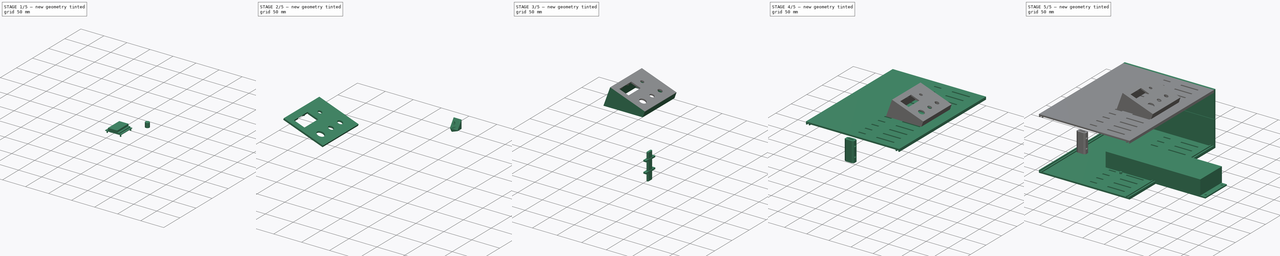
[diagram: build sequence overview — one tinted view per stage of 5, left to right]
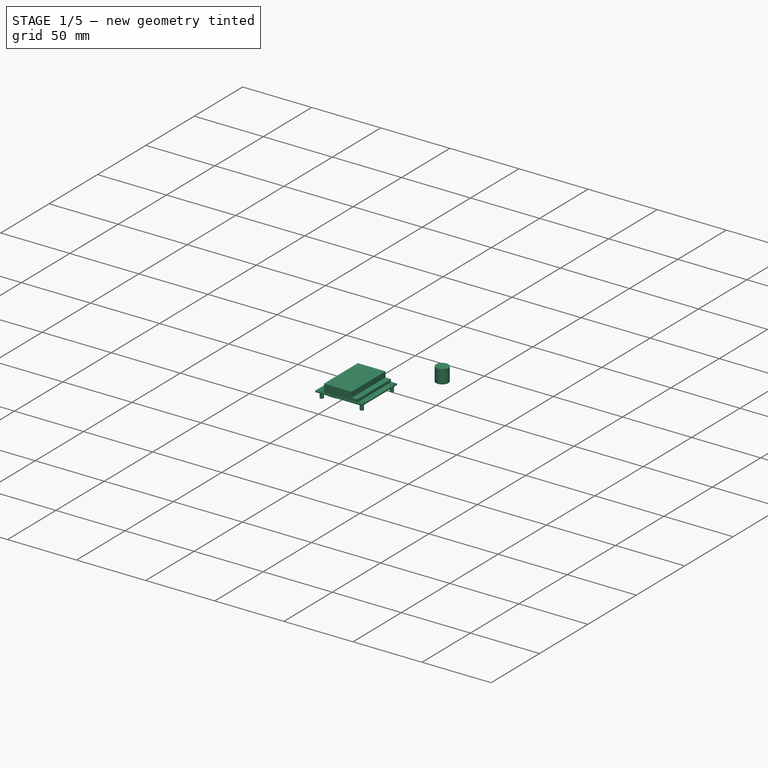
[diagram: stage 1 of 5 — iso view after this stage's code; geometry added in this stage tinted green]
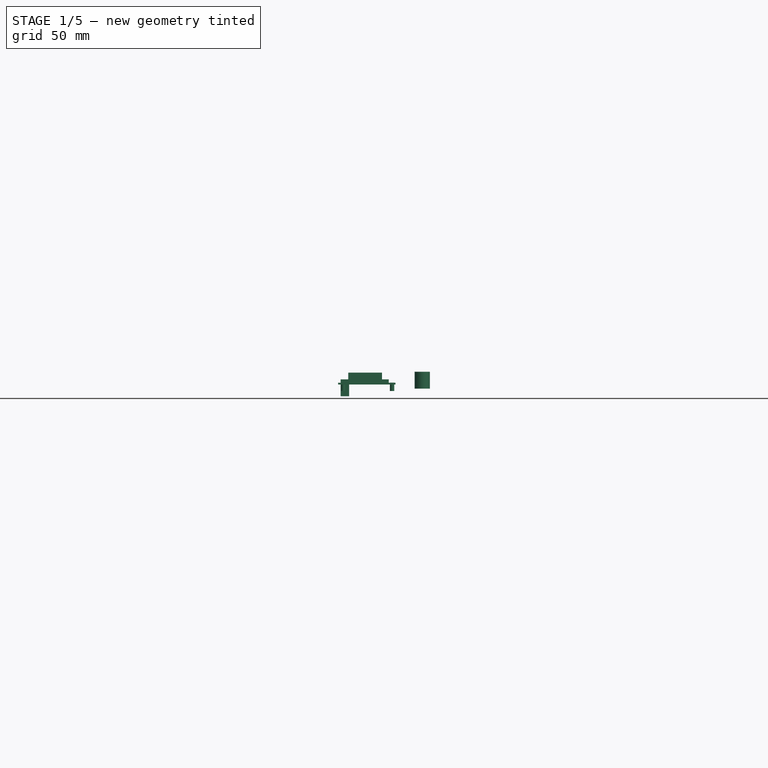
[diagram: stage 1 of 5 — front view after this stage's code; geometry added in this stage tinted green]
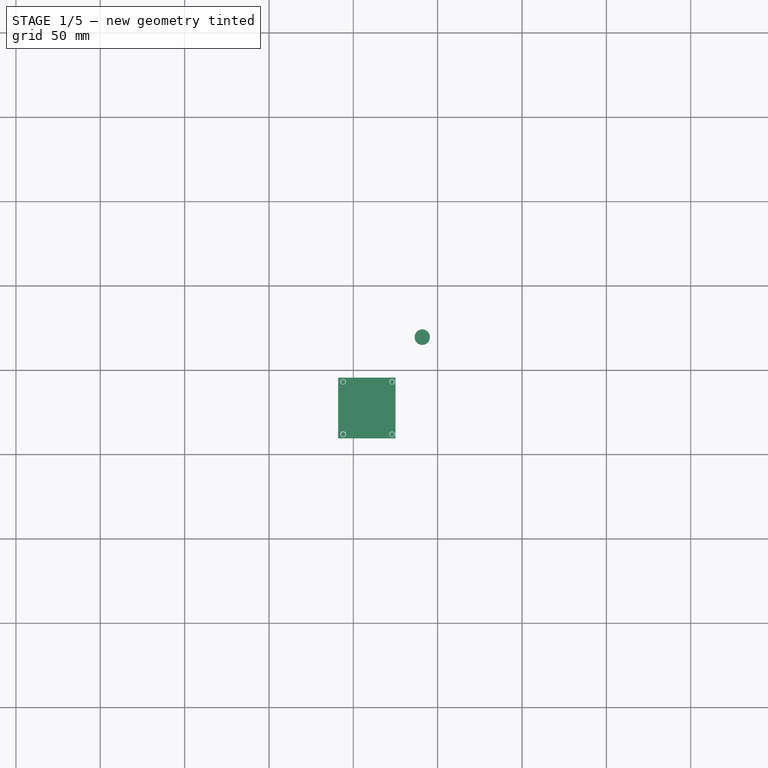
[diagram: stage 1 of 5 — top view after this stage's code; geometry added in this stage tinted green]
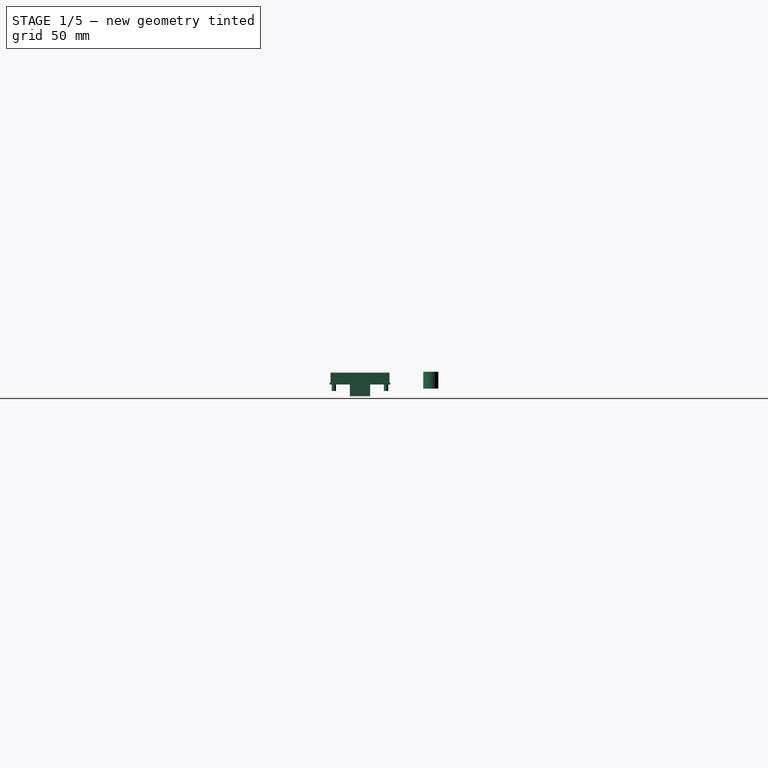
[diagram: stage 1 of 5 — right view after this stage's code; geometry added in this stage tinted green]
FCSTD DOCUMENT  (FreeCAD 0.21R33668 +26 (Git))
Label: HlavniModul
License: All rights reserved
LicenseURL: https://en.wikipedia.org/wiki/All_rights_reserved
objects: Part::Feature×48, App::Part×48, Part::Box×30, Part::MultiFuse×18, Part::Cylinder×17, Part::Cut×7, Part::Chamfer×6, Sketcher::SketchObject×4, Part::Extrusion×4, App::LinkGroup×1, Image::ImagePlane×1, Part::Wedge×1, Part::Mirroring×1, Part::Fillet×1
note: 137 computed .brp shape members not serialized (recipe doc carries the construction recipe); baked Part::Feature solids carry a one-line shape summary decoded from their .brp

FEATURE [Part::Cylinder] Cylinder042  label="screw"
  Angle = 360
  AttacherType = Attacher::AttachEngine3D
  FirstAngle = 0
  Height = 5
  Placement = pos=(-27,312,25.0938) rot=(1,0,0;3.14159rad)
  Radius = 1.3
  SecondAngle = 0
FEATURE [Part::Cylinder] Cylinder076
  Angle = 360
  AttacherType = Attacher::AttachEngine3D
  FirstAngle = 0
  Height = 10
  Placement = pos=(-9.11733,369.5,21.5179) rot=(0,0,1;0rad)
  Radius = 4.5
  SecondAngle = 0
FEATURE [Part::Box] Box004  label="Cube004"
  AttacherType = Attacher::AttachEngine3D
  Height = 4
  Length = 35
  Placement = pos=(0.5,8,3) rot=(0,0,1;0rad)
  Width = 20
FEATURE [Part::Box] Box005  label="Cube005"
  AttacherType = Attacher::AttachEngine3D
  Height = 1
  Length = 36
  Width = 34
FEATURE [Part::Box] Box006  label="Cube006"
  AttacherType = Attacher::AttachEngine3D
  Height = 10
  Length = 12
  Placement = pos=(12,27.5,-7) rot=(0,0,1;0rad)
  Width = 5
FEATURE [Part::Box] Box007  label="Cube007"
  AttacherType = Attacher::AttachEngine3D
  Height = 2
  Length = 35
  Placement = pos=(0.5,4,1) rot=(0,0,1;0rad)
  Width = 24
FEATURE [Part::Cylinder] Cylinder004
  Angle = 360
  AttacherType = Attacher::AttachEngine3D
  FirstAngle = 0
  Height = 10
  Placement = pos=(33.5,2,0) rot=(0,0,1;0rad)
  Radius = 1.6
  SecondAngle = 0
FEATURE [Part::Cylinder] Cylinder005
  Angle = 360
  AttacherType = Attacher::AttachEngine3D
  FirstAngle = 0
  Height = 10
  Placement = pos=(33.5,31,0) rot=(0,0,1;0rad)
  Radius = 1.6
  SecondAngle = 0
FEATURE [Part::Cylinder] Cylinder077
  Angle = 360
  AttacherType = Attacher::AttachEngine3D
  FirstAngle = 0
  Height = 10
  Placement = pos=(2.5,2,0) rot=(0,0,1;0rad)
  Radius = 1.6
  SecondAngle = 0
FEATURE [Part::Cylinder] Cylinder078
  Angle = 360
  AttacherType = Attacher::AttachEngine3D
  FirstAngle = 0
  Height = 10
  Placement = pos=(2.5,31,0) rot=(0,0,1;0rad)
  Radius = 1.6
  SecondAngle = 0
FEATURE [Part::MultiFuse] Fusion003
  Shapes = -> [Box006,Box005,Box007,Box004]
FEATURE [Part::MultiFuse] Fusion004
  Shapes = -> [Cylinder005,Cylinder078,Cylinder077,Cylinder004]
FEATURE [Part::Cut] Cut048  label="oled"
  Base = -> Fusion003
  Placement = pos=(-25,309.5,24) rot=(0,0,1;1.5708rad)
  Tool = -> Fusion004
FEATURE [Part::Cylinder] Cylinder080  label="screw004"
  Angle = 360
  AttacherType = Attacher::AttachEngine3D
  FirstAngle = 0
  Height = 5
  Placement = pos=(-56,312,25.0938) rot=(1,0,0;3.14159rad)
  Radius = 1.3
  SecondAngle = 0
FEATURE [Part::Cylinder] Cylinder081  label="screw005"
  Angle = 360
  AttacherType = Attacher::AttachEngine3D
  FirstAngle = 0
  Height = 5
  Placement = pos=(-27,343,25.0938) rot=(1,0,0;3.14159rad)
  Radius = 1.3
  SecondAngle = 0
FEATURE [Part::Cylinder] Cylinder082  label="screw006"
  Angle = 360
  AttacherType = Attacher::AttachEngine3D
  FirstAngle = 0
  Height = 5
  Placement = pos=(-56,343,25.0938) rot=(1,0,0;3.14159rad)
  Radius = 1.3
  SecondAngle = 0
FEATURE [Part::MultiFuse] Fusion072
  Shapes = -> [Cylinder081,Cylinder082,Cylinder080,Cylinder042]
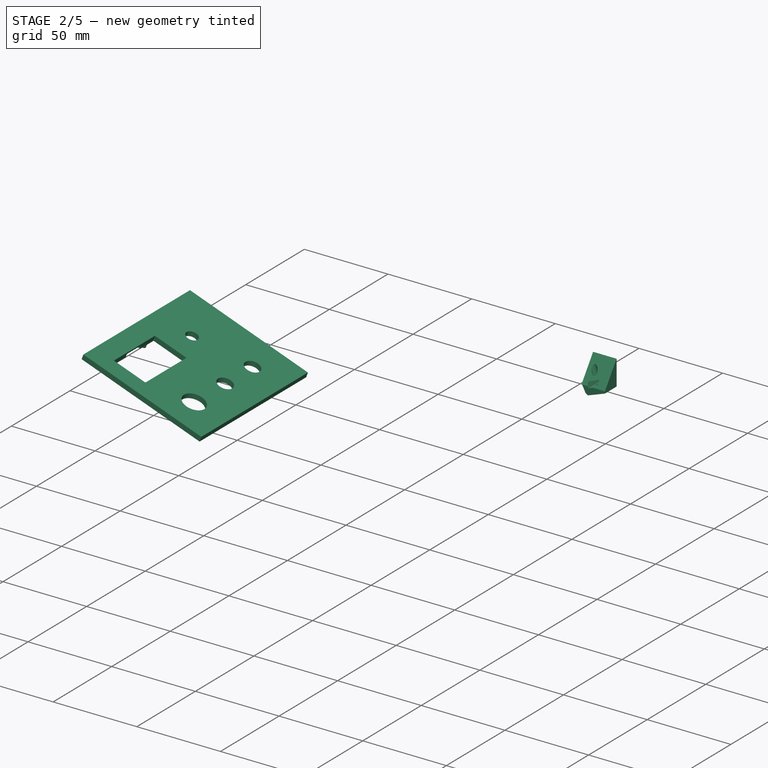
[diagram: stage 2 of 5 — iso view after this stage's code; geometry added in this stage tinted green]
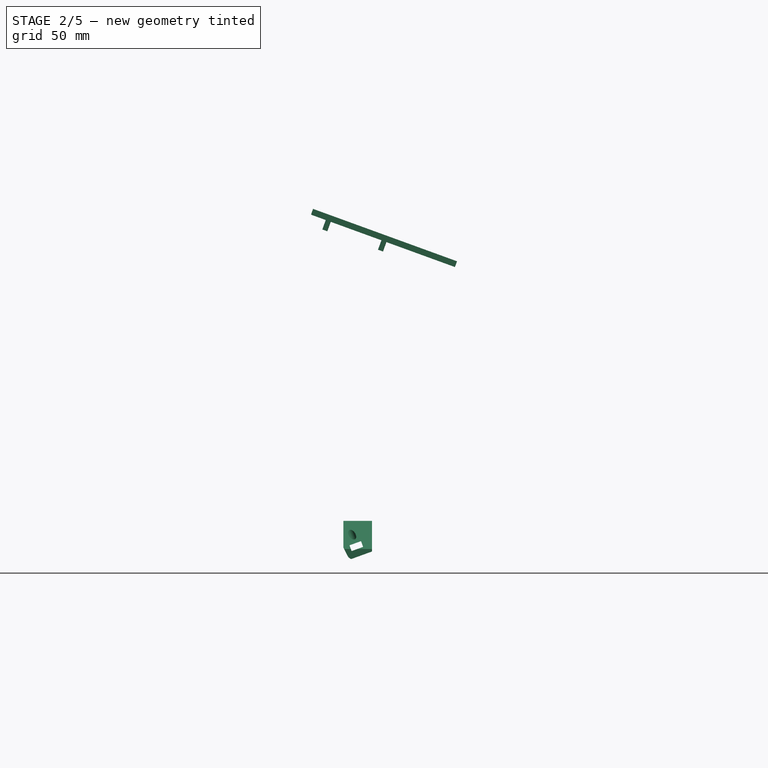
[diagram: stage 2 of 5 — front view after this stage's code; geometry added in this stage tinted green]
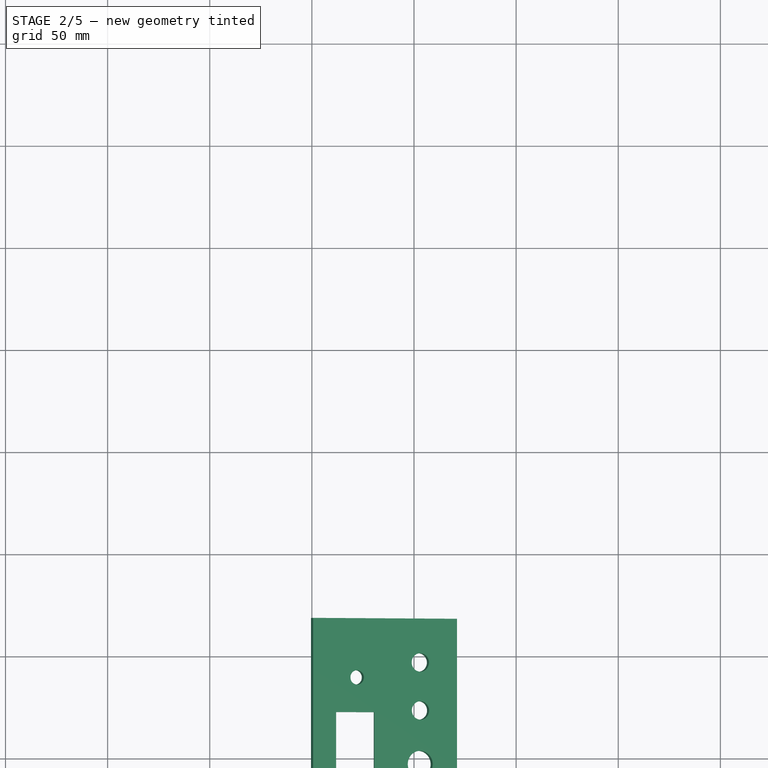
[diagram: stage 2 of 5 — top view after this stage's code; geometry added in this stage tinted green]
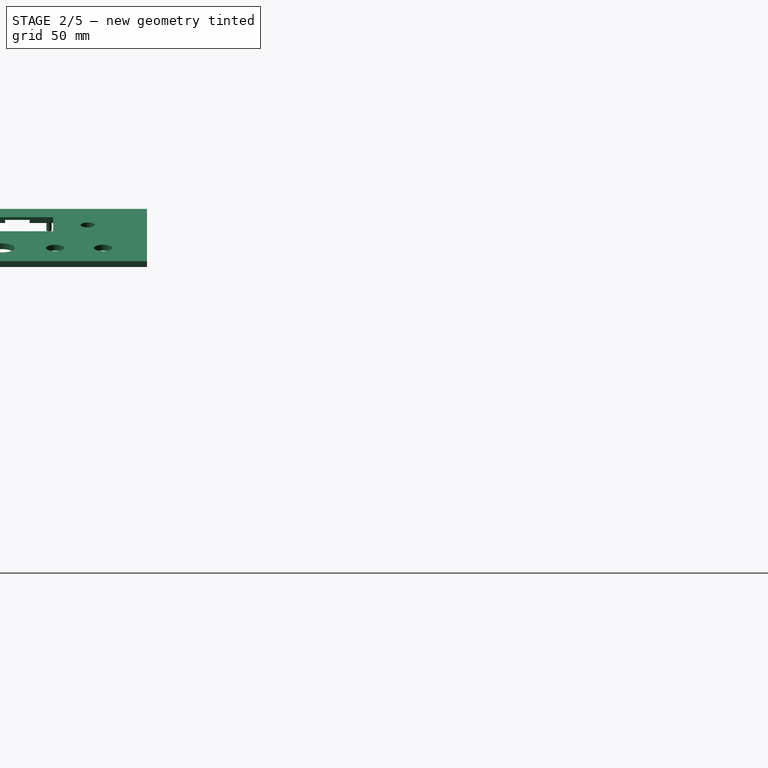
[diagram: stage 2 of 5 — right view after this stage's code; geometry added in this stage tinted green]
FEATURE [Sketcher::SketchObject] Sketch004
  FullyConstrained = false
  Placement = pos=(0,0,0) rot=(1,0,0;1.5708rad)
  sketch-geometry (4):
    g0: LineSegment StartX=68.9118 StartY=6.26702 StartZ=0 EndX=54.9118 EndY=6.26702 EndZ=0
    g1: LineSegment StartX=54.9118 StartY=6.26702 StartZ=0 EndX=54.9118 EndY=-13.8286 EndZ=0
    g2: LineSegment StartX=54.9118 StartY=-13.8286 StartZ=0 EndX=68.9118 EndY=-8.73298 EndZ=0
    g3: LineSegment StartX=68.9118 StartY=-8.73298 StartZ=0 EndX=68.9118 EndY=6.26702 EndZ=0
  constraints (10):
    c: Coincident(g0,g1)
    c: Coincident(g1,g2)
    c: Coincident(g2,g3)
    c: Coincident(g3,g0)
    c: Horizontal(g0)
    c: Vertical(g1)
    c: Vertical(g3)
    c: Angle(g3,g2) = 1.91986
    c: Distance(g0) = 14
    c: Distance(g3) = 15
FEATURE [Part::Extrusion] Extrude004
  Base = -> Sketch004
  Dir = (0,-1,-3e-16)
  DirMode = 2
  FaceMakerClass = Part::FaceMakerBullseye
  LengthFwd = 10
  LengthRev = 0
  Solid = true
  Symmetric = false
FEATURE [Part::Cylinder] Cylinder072
  Angle = 360
  AttacherType = Attacher::AttachEngine3D
  FirstAngle = 0
  Height = 30
  Placement = pos=(61,-4.5,-16.5) rot=(0,0,1;0rad)
  Radius = 1.7
  SecondAngle = 0
FEATURE [Part::Box] Box139  label="Cube139"
  AttacherType = Attacher::AttachEngine3D
  Height = 3
  Length = 6
  Placement = pos=(58,-19,-8.5) rot=(0,0,1;0rad)
  Width = 31
FEATURE [Part::Wedge] Wedge006
  AttacherType = Attacher::AttachEngine3D
  Placement = pos=(54.5,-11,4.5) rot=(-1,0,0;1.5708rad)
  X2max = 15
  X2min = 0
  Xmax = 15
  Xmin = 0
  Ymax = 12
  Ymin = -2
  Z2max = 1
  Z2min = 1
  Zmax = 11
  Zmin = 1
FEATURE [Part::MultiFuse] Fusion070
  Placement = pos=(1.53737,-0.5,-20.3763) rot=(0,-1,0;0.349066rad)
  Shapes = -> [Box139,Cylinder072]
FEATURE [Part::Cut] Cut045
  Base = -> Extrude004
  Tool = -> Wedge006
FEATURE [Part::Cut] Cut046
  Base = -> Cut045
  Tool = -> Fusion070
FEATURE [Part::Chamfer] Chamfer049
  Base = -> Cut046
  Edges = 1 edges r=4: [Edge12]
  Placement = pos=(-89.5,389,7.5) rot=(0,0,1;0rad)
FEATURE [Part::Chamfer] Chamfer050
  Base = -> Chamfer049
  Edges = 1 edges r=3: [Edge13]
FEATURE [Part::Box] Box141  label="Cube141"
  AttacherType = Attacher::AttachEngine3D
  Height = 75
  Length = 3
  Placement = pos=(10,300,25) rot=(0,1,0;4.71239rad)
  Width = 91
FEATURE [Part::Cylinder] Cylinder073
  Angle = 360
  AttacherType = Attacher::AttachEngine3D
  FirstAngle = 0
  Height = 10
  Placement = pos=(-42.0264,362,21.8762) rot=(0,0,1;0rad)
  Radius = 3.5
  SecondAngle = 0
FEATURE [Part::Cylinder] Cylinder074
  Angle = 360
  AttacherType = Attacher::AttachEngine3D
  FirstAngle = 0
  Height = 10
  Placement = pos=(-9.03186,346,21.8314) rot=(0,0,1;0rad)
  Radius = 4.5
  SecondAngle = 0
FEATURE [Part::Cylinder] Cylinder075
  Angle = 360
  AttacherType = Attacher::AttachEngine3D
  FirstAngle = 0
  Height = 10
  Placement = pos=(-9.15798,319.7,20.9397) rot=(0,0,1;0rad)
  Radius = 6.5
  SecondAngle = 0
FEATURE [Part::MultiFuse] Fusion071
  Shapes = -> [Cylinder075,Cylinder076,Cylinder074,Cylinder073]
FEATURE [Part::Cut] Cut047
  Base = -> Box141
  Tool = -> Fusion071
FEATURE [Part::Cut] Cut049
  Base = -> Cut047
  Tool = -> Cut048
FEATURE [Part::MultiFuse] Fusion075
  Placement = pos=(2.08668,-325,117.957) rot=(0,1,0;0.349066rad)
  Shapes = -> [Cut049,Fusion072]
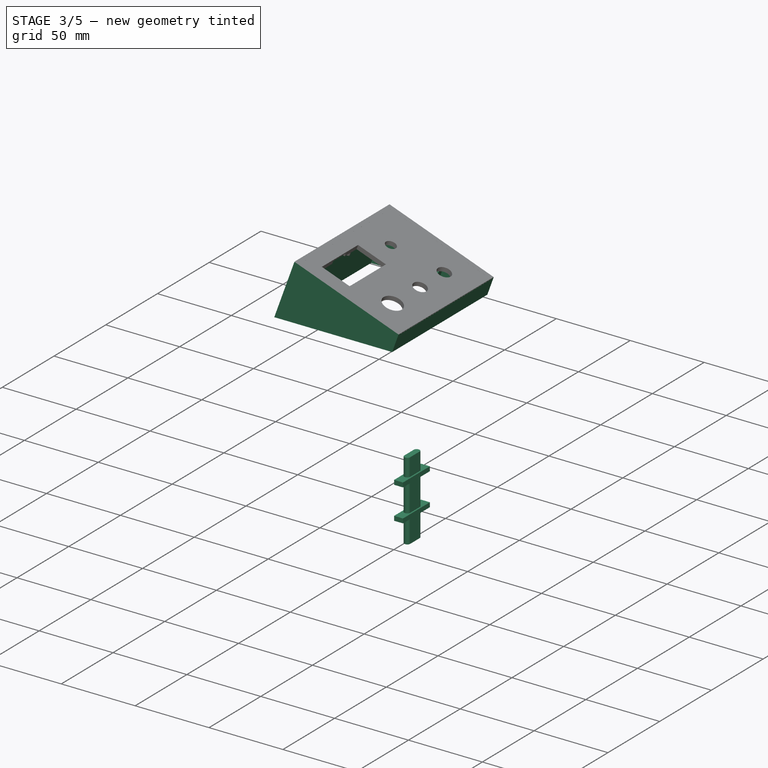
[diagram: stage 3 of 5 — iso view after this stage's code; geometry added in this stage tinted green]
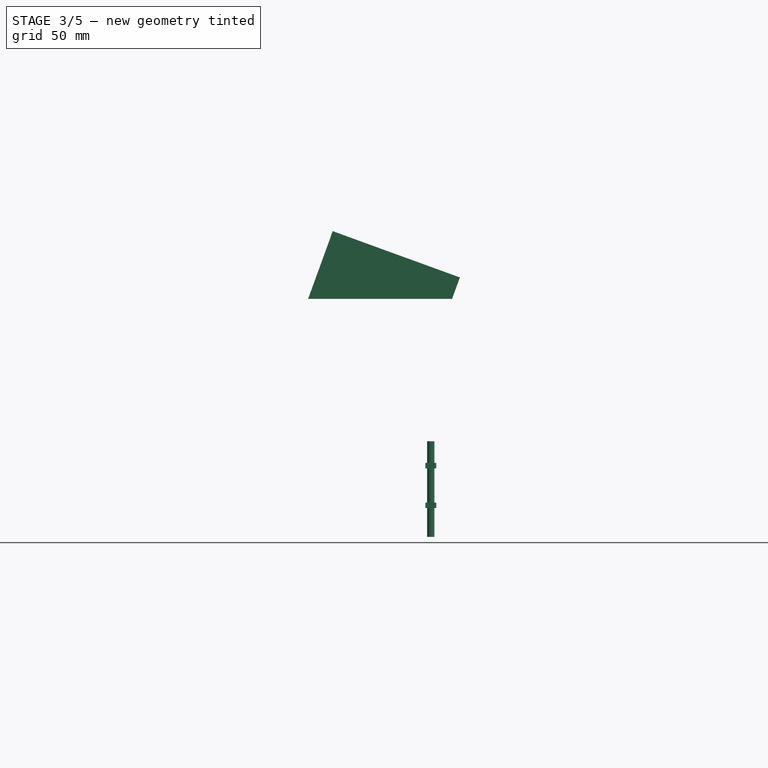
[diagram: stage 3 of 5 — front view after this stage's code; geometry added in this stage tinted green]
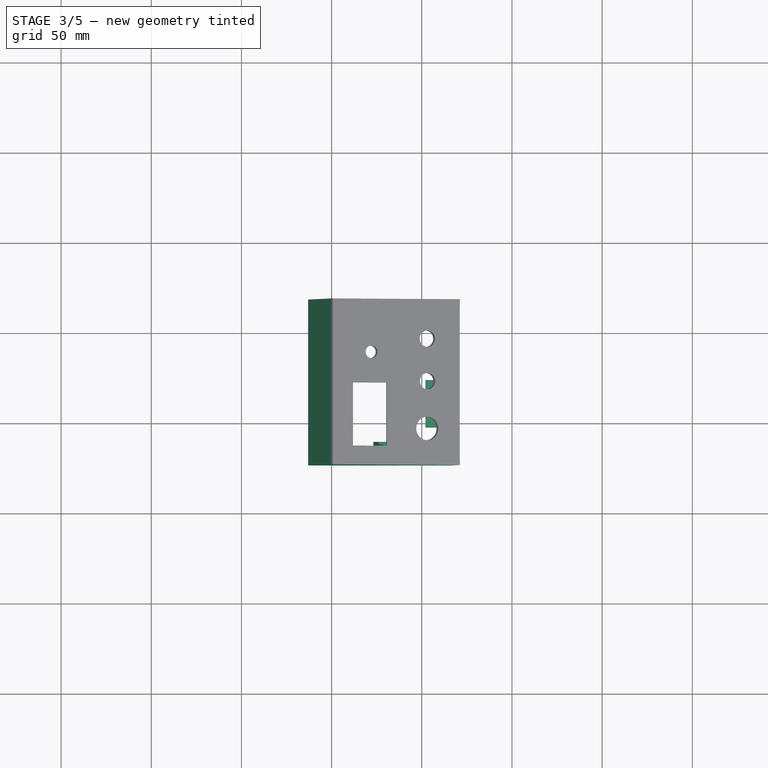
[diagram: stage 3 of 5 — top view after this stage's code; geometry added in this stage tinted green]
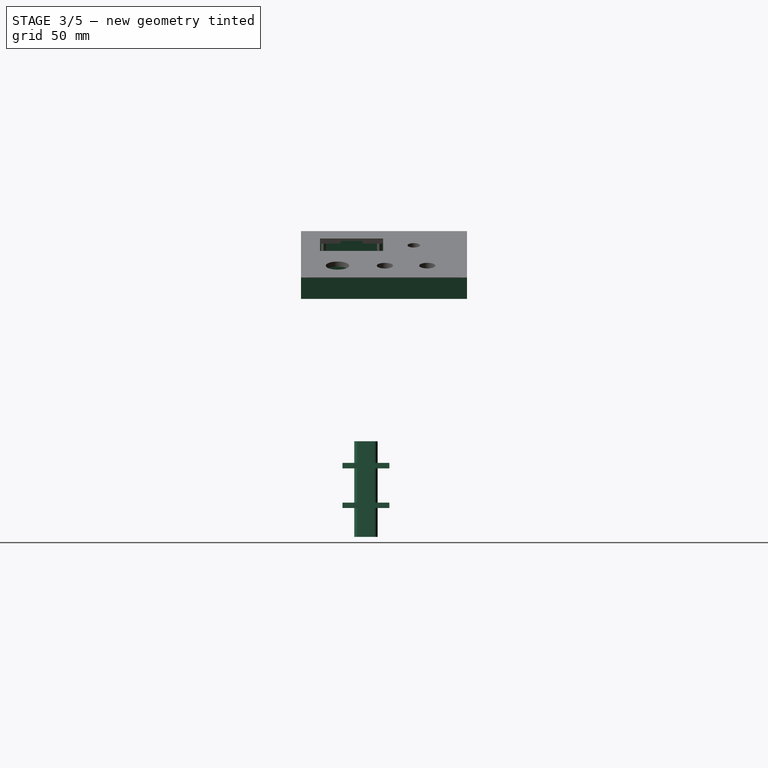
[diagram: stage 3 of 5 — right view after this stage's code; geometry added in this stage tinted green]
FEATURE [Part::Box] Box081  label="Cube081"
  AttacherType = Attacher::AttachEngine3D
  Height = 53
  Length = 3
  Placement = pos=(-65,302,-25) rot=(0,0,-1;1.5708rad)
  Width = 75
FEATURE [Part::Box] Box082  label="Cube082"
  AttacherType = Attacher::AttachEngine3D
  Height = 21
  Length = 3
  Placement = pos=(7,302,6.5) rot=(0,0,1;0rad)
  Width = 87
FEATURE [Part::Box] Box089  label="Cube089"
  AttacherType = Attacher::AttachEngine3D
  Height = 52
  Length = 3
  Placement = pos=(-65,302,-24) rot=(0,0,1;0rad)
  Width = 87
FEATURE [Part::Box] Box104  label="Cube104"
  AttacherType = Attacher::AttachEngine3D
  Height = 53
  Length = 3
  Placement = pos=(-65,391,-25) rot=(0,0,-1;1.5708rad)
  Width = 75
FEATURE [Part::Box] Box105  label="Cube105"
  AttacherType = Attacher::AttachEngine3D
  Height = 58.5
  Length = 108
  Placement = pos=(-74.171,398,-77.5302) rot=(0.171088,-0.171088,-0.970288;1.60095rad)
  Width = 118
FEATURE [Part::MultiFuse] Fusion055
  Shapes = -> [Box082,Box104,Box081,Box089]
FEATURE [Part::Cut] Cut038
  Base = -> Fusion055
  Tool = -> Box105
FEATURE [Part::Chamfer] Chamfer051
  Base = -> Chamfer050
  Edges = 1 edges r=2: [Edge13]
  Placement = pos=(0,-0.5,0) rot=(0,0,1;0rad)
FEATURE [Part::Mirroring] Part__Mirroring003  label="Chamfer051 (Mirror #3)"
  Base = (0,0,0)
  Normal = (0,1,0)
  Placement = pos=(0,690.5,0) rot=(0,0,1;0rad)
  Source = -> Chamfer051
FEATURE [Part::Chamfer] Chamfer052
  Base = -> Chamfer051
  Edges = 1 edges r=1.2: [Edge24]
  Placement = pos=(1,0,6) rot=(0,0,1;0rad)
FEATURE [Part::Chamfer] Chamfer053
  Base = -> Part__Mirroring003
  Edges = 1 edges r=1.2: [Edge24]
  Placement = pos=(1,0,6) rot=(0,0,1;0rad)
FEATURE [Part::MultiFuse] Fusion076
  Placement = pos=(2.15,-324.5,117.942) rot=(0,1,0;0.349066rad)
  Shapes = -> [Chamfer052,Chamfer053,Cut038]
FEATURE [Part::Box] Box164  label="Cube164"
  AttacherType = Attacher::AttachEngine3D
  Height = 3
  Length = 6
  Placement = pos=(2,-2.5,13) rot=(0,0,1;0rad)
  Width = 26
FEATURE [Part::Box] Box165  label="Cube165"
  AttacherType = Attacher::AttachEngine3D
  Height = 13
  Length = 4
  Placement = pos=(3,4,50) rot=(-1,0,0;1.5708rad)
  Width = 53
FEATURE [Part::Box] Box166  label="Cube166"
  AttacherType = Attacher::AttachEngine3D
  Height = 3
  Length = 6
  Placement = pos=(2,-2.5,35) rot=(0,0,1;0rad)
  Width = 26
FEATURE [Part::Fillet] Fillet020
  Base = -> Box165
  Edges = 4 edges r=1.9: [Edge2,Edge4,Edge6,Edge8]
FEATURE [Part::MultiFuse] Fusion087  label="panel"
  Shapes = -> [Fusion076,Fusion075]
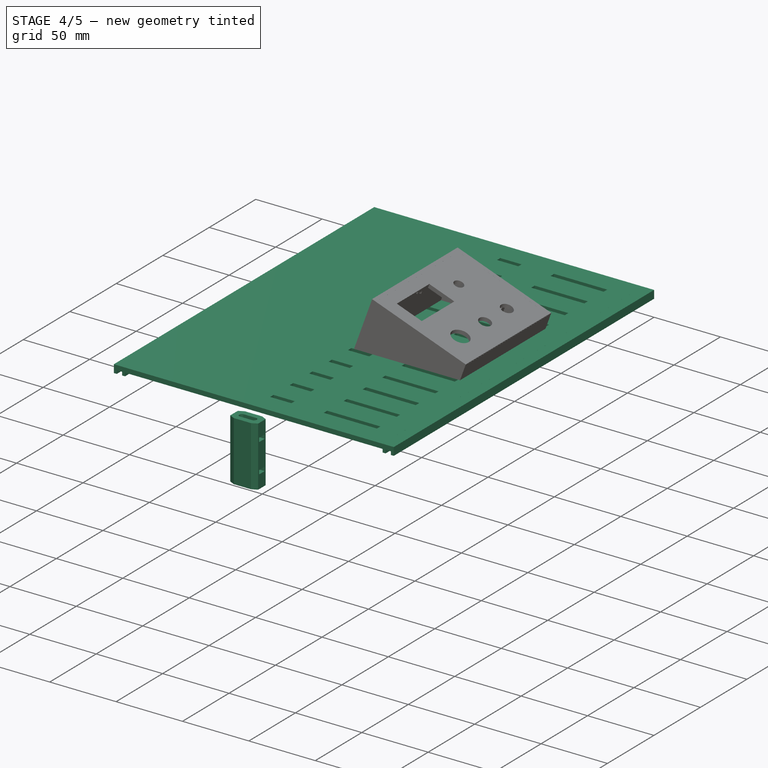
[diagram: stage 4 of 5 — iso view after this stage's code; geometry added in this stage tinted green]
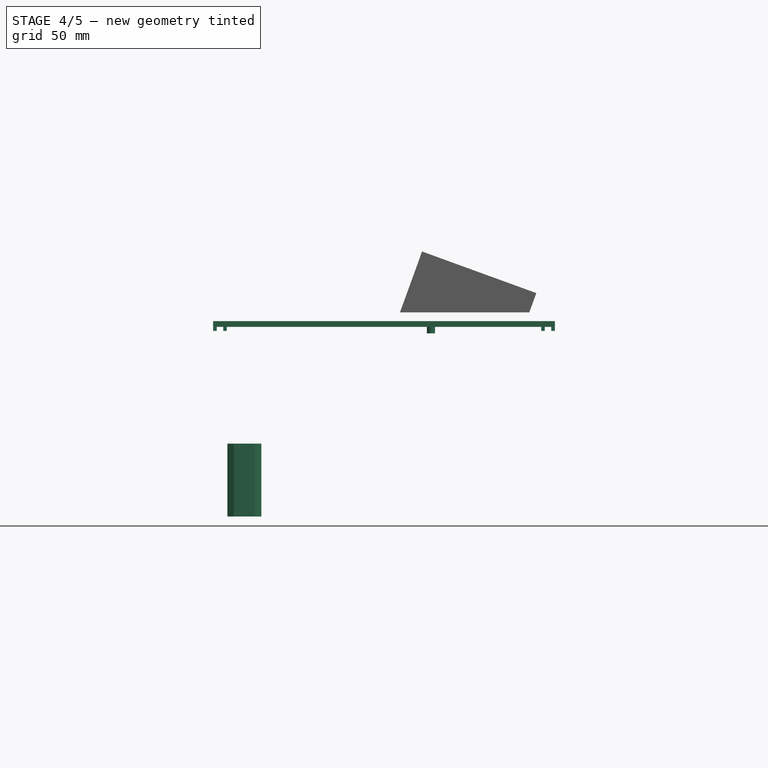
[diagram: stage 4 of 5 — front view after this stage's code; geometry added in this stage tinted green]
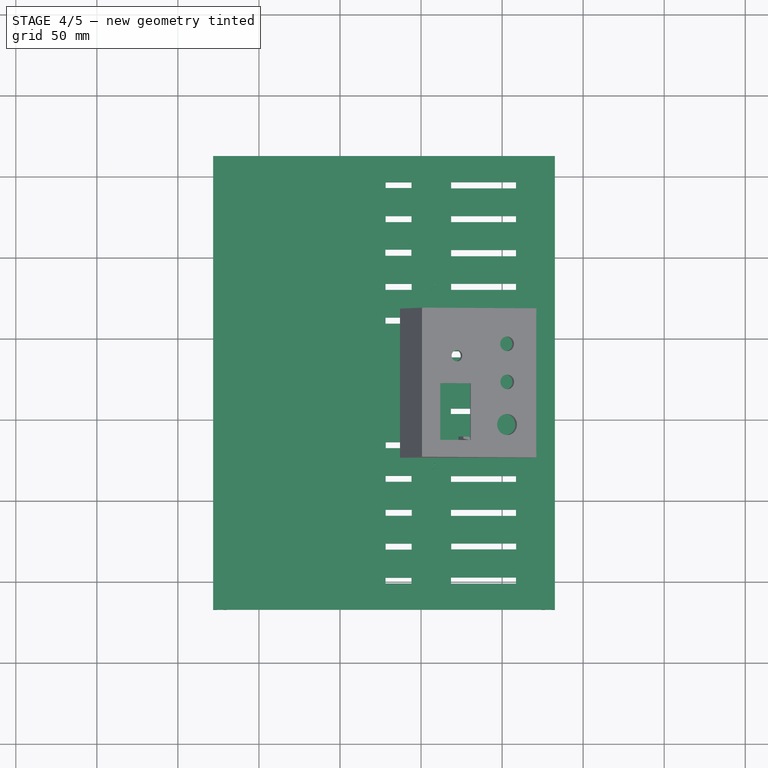
[diagram: stage 4 of 5 — top view after this stage's code; geometry added in this stage tinted green]
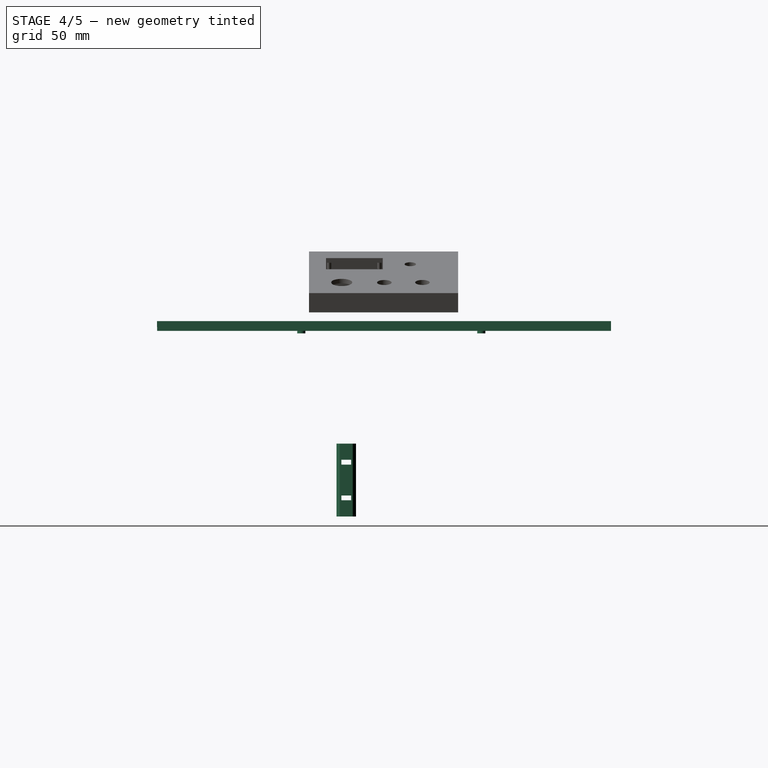
[diagram: stage 4 of 5 — right view after this stage's code; geometry added in this stage tinted green]
FEATURE [Part::Box] Box114  label="Cube114"
  AttacherType = Attacher::AttachEngine3D
  Height = 3.5
  Length = 4
  Placement = pos=(26.35,-119.2,0) rot=(0,0,1;0rad)
  Width = 280
FEATURE [Part::Box] Box115  label="Cube115"
  AttacherType = Attacher::AttachEngine3D
  Height = 6
  Length = 2.2
  Placement = pos=(24.15,-119.2,0) rot=(0,0,1;0rad)
  Width = 280
FEATURE [Part::Box] Box116  label="Cube116"
  AttacherType = Attacher::AttachEngine3D
  Height = 6
  Length = 2.2
  Placement = pos=(30.35,-119.2,0) rot=(0,0,1;0rad)
  Width = 280
FEATURE [Part::Box] Box117  label="Cube117"
  AttacherType = Attacher::AttachEngine3D
  Height = 3.5
  Length = 4
  Placement = pos=(26.35,-119.2,0) rot=(0,0,1;0rad)
  Width = 280
FEATURE [Part::Box] Box118  label="Cube118"
  AttacherType = Attacher::AttachEngine3D
  Height = 6
  Length = 2.2
  Placement = pos=(24.15,-119.2,0) rot=(0,0,1;0rad)
  Width = 280
FEATURE [Part::Box] Box119  label="Cube119"
  AttacherType = Attacher::AttachEngine3D
  Height = 6
  Length = 2.2
  Placement = pos=(30.35,-119.2,0) rot=(0,0,1;0rad)
  Width = 280
FEATURE [Part::Cylinder] Cylinder057
  Angle = 360
  AttacherType = Attacher::AttachEngine3D
  FirstAngle = 0
  Height = 7.5
  Placement = pos=(-43.9,-39.2,0) rot=(0,0,1;0rad)
  Radius = 2.5
  SecondAngle = 0
FEATURE [Part::Cylinder] Cylinder058
  Angle = 360
  AttacherType = Attacher::AttachEngine3D
  FirstAngle = 0
  Height = 7.5
  Placement = pos=(-43.9,71.8,0) rot=(0,0,1;0rad)
  Radius = 2.5
  SecondAngle = 0
FEATURE [Part::MultiFuse] Fusion061
  Shapes = -> [Box115,Box114,Box116]
FEATURE [Part::MultiFuse] Fusion062
  Placement = pos=(-202.4,0,0) rot=(0,0,1;0rad)
  Shapes = -> [Box118,Box117,Box119]
FEATURE [Sketcher::SketchObject] Sketch003
  FullyConstrained = false
  sketch-geometry (94):
    g0: LineSegment StartX=-169.854 StartY=160.823 StartZ=0 EndX=24.1463 EndY=160.823 EndZ=0
    g1: LineSegment StartX=24.1463 StartY=160.823 StartZ=0 EndX=24.1463 EndY=-119.177 EndZ=0
    g2: LineSegment StartX=24.1463 StartY=-119.177 StartZ=0 EndX=-169.854 EndY=-119.177 EndZ=0
    g3: LineSegment StartX=-169.854 StartY=-119.177 StartZ=0 EndX=-169.854 EndY=160.823 EndZ=0
    g4: LineSegment StartX=-31.4959 StartY=144.646 StartZ=0 EndX=8.57413 EndY=144.646 EndZ=0
    g5: LineSegment StartX=8.57413 StartY=144.646 StartZ=0 EndX=8.57413 EndY=140.903 EndZ=0
    g6: LineSegment StartX=8.57413 StartY=140.903 StartZ=0 EndX=-31.4959 EndY=140.903 EndZ=0
    g7: LineSegment StartX=-31.4959 StartY=140.903 StartZ=0 EndX=-31.4959 EndY=144.646 EndZ=0
    g8: LineSegment StartX=-31.3517 StartY=123.547 StartZ=0 EndX=8.68947 EndY=123.547 EndZ=0
    g9: LineSegment StartX=8.68947 StartY=123.547 StartZ=0 EndX=8.68947 EndY=119.934 EndZ=0
    g10: LineSegment StartX=8.68947 StartY=119.934 StartZ=0 EndX=-31.3517 EndY=119.934 EndZ=0
    g11: LineSegment StartX=-31.3517 StartY=119.934 StartZ=0 EndX=-31.3517 EndY=123.547 EndZ=0
    g12: LineSegment StartX=-31.485 StartY=102.88 StartZ=0 EndX=8.55618 EndY=102.88 EndZ=0
    g13: LineSegment StartX=8.55618 StartY=102.88 StartZ=0 EndX=8.55618 EndY=99.0977 EndZ=0
    g14: LineSegment StartX=8.55618 StartY=99.0977 StartZ=0 EndX=-31.485 EndY=99.0977 EndZ=0
    g15: LineSegment StartX=-31.485 StartY=99.0977 StartZ=0 EndX=-31.485 EndY=102.88 EndZ=0
    g16: LineSegment StartX=-31.4894 StartY=81.8592 StartZ=0 EndX=8.55181 EndY=81.8592 EndZ=0
    g17: LineSegment StartX=8.55181 StartY=81.8592 StartZ=0 EndX=8.55181 EndY=78.3129 EndZ=0
    g18: LineSegment StartX=8.55181 StartY=78.3129 StartZ=0 EndX=-31.4894 EndY=78.3129 EndZ=0
    g19: LineSegment StartX=-31.4894 StartY=78.3129 StartZ=0 EndX=-31.4894 EndY=81.8592 EndZ=0
    g20: LineSegment StartX=-31.5244 StartY=60.9541 StartZ=0 EndX=8.58843 EndY=60.9541 EndZ=0
    g21: LineSegment StartX=8.58843 StartY=60.9541 StartZ=0 EndX=8.58843 EndY=57.3927 EndZ=0
    g22: LineSegment StartX=8.58843 StartY=57.3927 StartZ=0 EndX=-31.5244 EndY=57.3927 EndZ=0
    g23: LineSegment StartX=-31.5244 StartY=57.3927 StartZ=0 EndX=-31.5244 EndY=60.9541 EndZ=0
    g24: LineSegment StartX=-31.5895 StartY=39.9693 StartZ=0 EndX=8.45174 EndY=39.9693 EndZ=0
    g25: LineSegment StartX=8.45174 StartY=39.9693 StartZ=0 EndX=8.45174 EndY=36.6787 EndZ=0
    g26: LineSegment StartX=8.45174 StartY=36.6787 StartZ=0 EndX=-31.5895 EndY=36.6787 EndZ=0
    g27: LineSegment StartX=-31.5895 StartY=36.6787 StartZ=0 EndX=-31.5895 EndY=39.9693 EndZ=0
    g28: LineSegment StartX=-31.4418 StartY=5.07029 StartZ=0 EndX=8.56749 EndY=5.07029 EndZ=0
    g29: LineSegment StartX=8.56749 StartY=5.07029 StartZ=0 EndX=8.56749 EndY=1.30652 EndZ=0
    g30: LineSegment StartX=8.56749 StartY=1.30652 StartZ=0 EndX=-31.4418 EndY=1.30652 EndZ=0
    g31: LineSegment StartX=-31.4418 StartY=1.30652 StartZ=0 EndX=-31.4418 EndY=5.07029 EndZ=0
    g32: LineSegment StartX=-31.5026 StartY=-15.6137 StartZ=0 EndX=8.49379 EndY=-15.6137 EndZ=0
    g33: LineSegment StartX=8.49379 StartY=-15.6137 StartZ=0 EndX=8.49379 EndY=-19.5496 EndZ=0
    g34: LineSegment StartX=8.49379 StartY=-19.5496 StartZ=0 EndX=-31.5026 EndY=-19.5496 EndZ=0
    g35: LineSegment StartX=-31.5026 StartY=-19.5496 StartZ=0 EndX=-31.5026 EndY=-15.6137 EndZ=0
    g36: LineSegment StartX=-31.458 StartY=-36.5959 StartZ=0 EndX=8.59703 EndY=-36.5959 EndZ=0
    g37: LineSegment StartX=8.59703 StartY=-36.5959 StartZ=0 EndX=8.59703 EndY=-40.3785 EndZ=0
    g38: LineSegment StartX=8.59703 StartY=-40.3785 StartZ=0 EndX=-31.458 EndY=-40.3785 EndZ=0
    g39: LineSegment StartX=-31.458 StartY=-40.3785 StartZ=0 EndX=-31.458 EndY=-36.5959 EndZ=0
    g40: LineSegment StartX=-31.4658 StartY=-57.3464 StartZ=0 EndX=8.57543 EndY=-57.3464 EndZ=0
    g41: LineSegment StartX=8.57543 StartY=-57.3464 StartZ=0 EndX=8.57543 EndY=-61.1532 EndZ=0
    g42: LineSegment StartX=8.57543 StartY=-61.1532 StartZ=0 EndX=-31.4658 EndY=-61.1532 EndZ=0
    g43: LineSegment StartX=-31.4658 StartY=-61.1532 StartZ=0 EndX=-31.4658 EndY=-57.3464 EndZ=0
    g44: LineSegment StartX=-31.4377 StartY=-78.3871 StartZ=0 EndX=8.60351 EndY=-78.3871 EndZ=0
    g45: LineSegment StartX=8.60352 StartY=-78.3871 StartZ=0 EndX=8.60352 EndY=-82.0649 EndZ=0
    g46: LineSegment StartX=8.60352 StartY=-82.0649 StartZ=0 EndX=-31.4377 EndY=-82.0649 EndZ=0
    g47: LineSegment StartX=-31.4377 StartY=-82.0649 StartZ=0 EndX=-31.4377 EndY=-78.3871 EndZ=0
    g48: LineSegment StartX=-31.4694 StartY=-99.2069 StartZ=0 EndX=8.57177 EndY=-99.2069 EndZ=0
    g49: LineSegment StartX=8.57177 StartY=-99.2069 StartZ=0 EndX=8.57177 EndY=-102.99 EndZ=0
    g50: LineSegment StartX=8.57177 StartY=-102.99 StartZ=0 EndX=-31.4694 EndY=-102.99 EndZ=0
    g51: LineSegment StartX=-31.4694 StartY=-102.99 StartZ=0 EndX=-31.4694 EndY=-99.2069 EndZ=0
    g52: LineSegment StartX=-71.9221 StartY=144.613 StartZ=0 EndX=-55.885 EndY=144.613 EndZ=0
    g53: LineSegment StartX=-55.885 StartY=144.613 StartZ=0 EndX=-55.885 EndY=141.023 EndZ=0
    g54: LineSegment StartX=-55.885 StartY=141.023 StartZ=0 EndX=-71.9221 EndY=141.023 EndZ=0
    g55: LineSegment StartX=-71.9221 StartY=141.023 StartZ=0 EndX=-71.9221 EndY=144.613 EndZ=0
    g56: LineSegment StartX=-71.8647 StartY=123.651 StartZ=0 EndX=-55.7958 EndY=123.651 EndZ=0
    g57: LineSegment StartX=-55.7958 StartY=123.651 StartZ=0 EndX=-55.7958 EndY=119.953 EndZ=0
    g58: LineSegment StartX=-55.7958 StartY=119.953 StartZ=0 EndX=-71.8647 EndY=119.953 EndZ=0
    g59: LineSegment StartX=-71.8647 StartY=119.953 StartZ=0 EndX=-71.8647 EndY=123.651 EndZ=0
    g60: LineSegment StartX=-71.8263 StartY=102.784 StartZ=0 EndX=-55.7574 EndY=102.784 EndZ=0
    g61: LineSegment StartX=-55.7574 StartY=102.784 StartZ=0 EndX=-55.7574 EndY=99.1063 EndZ=0
    g62: LineSegment StartX=-55.7574 StartY=99.1063 StartZ=0 EndX=-71.8263 EndY=99.1063 EndZ=0
    g63: LineSegment StartX=-71.8263 StartY=99.1063 StartZ=0 EndX=-71.8263 EndY=102.784 EndZ=0
    g64: LineSegment StartX=-71.8806 StartY=81.7976 StartZ=0 EndX=-55.8916 EndY=81.7976 EndZ=0
    g65: LineSegment StartX=-55.8916 StartY=81.7976 StartZ=0 EndX=-55.8916 EndY=78.2054 EndZ=0
    g66: LineSegment StartX=-55.8916 StartY=78.2054 StartZ=0 EndX=-71.8806 EndY=78.2054 EndZ=0
    g67: LineSegment StartX=-71.8806 StartY=78.2054 StartZ=0 EndX=-71.8806 EndY=81.7976 EndZ=0
    g68: LineSegment StartX=-71.7872 StartY=61.0855 StartZ=0 EndX=-55.7501 EndY=61.0855 EndZ=0
    g69: LineSegment StartX=-55.7501 StartY=61.0855 StartZ=0 EndX=-55.7501 EndY=57.4406 EndZ=0
    g70: LineSegment StartX=-55.7501 StartY=57.4406 StartZ=0 EndX=-71.7872 EndY=57.4406 EndZ=0
    g71: LineSegment StartX=-71.7872 StartY=57.4406 StartZ=0 EndX=-71.7872 EndY=61.0855 EndZ=0
    g72: LineSegment StartX=-71.8954 StartY=-15.729 StartZ=0 EndX=-55.8265 EndY=-15.729 EndZ=0
    g73: LineSegment StartX=-55.8265 StartY=-15.729 StartZ=0 EndX=-55.8265 EndY=-19.4269 EndZ=0
    g74: LineSegment StartX=-55.8265 StartY=-19.4269 StartZ=0 EndX=-71.8954 EndY=-19.4269 EndZ=0
    g75: LineSegment StartX=-71.8954 StartY=-19.4269 StartZ=0 EndX=-71.8954 EndY=-15.729 EndZ=0
    g76: LineSegment StartX=-71.9149 StartY=-36.5946 StartZ=0 EndX=-55.846 EndY=-36.5946 EndZ=0
    g77: LineSegment StartX=-55.846 StartY=-36.5946 StartZ=0 EndX=-55.846 EndY=-40.2924 EndZ=0
    g78: LineSegment StartX=-55.846 StartY=-40.2924 StartZ=0 EndX=-71.9149 EndY=-40.2924 EndZ=0
    g79: LineSegment StartX=-71.9149 StartY=-40.2924 StartZ=0 EndX=-71.9149 EndY=-36.5946 EndZ=0
    g80: LineSegment StartX=-72.0196 StartY=-57.6194 StartZ=0 EndX=-55.9507 EndY=-57.6194 EndZ=0
    g81: LineSegment StartX=-55.9507 StartY=-57.6194 StartZ=0 EndX=-55.9507 EndY=-61.3701 EndZ=0
    g82: LineSegment StartX=-55.9507 StartY=-61.3701 StartZ=0 EndX=-72.0196 EndY=-61.3701 EndZ=0
    g83: LineSegment StartX=-72.0196 StartY=-61.3701 StartZ=0 EndX=-72.0196 EndY=-57.6194 EndZ=0
    g84: LineSegment StartX=-71.8795 StartY=-78.3705 StartZ=0 EndX=-55.8692 EndY=-78.3705 EndZ=0
    g85: LineSegment StartX=-55.8692 StartY=-78.3705 StartZ=0 EndX=-55.8692 EndY=-82.09 EndZ=0
    g86: LineSegment StartX=-55.8692 StartY=-82.09 StartZ=0 EndX=-71.8795 EndY=-82.09 EndZ=0
    g87: LineSegment StartX=-71.8795 StartY=-82.09 StartZ=0 EndX=-71.8795 EndY=-78.3705 EndZ=0
    g88: LineSegment StartX=-71.8804 StartY=-99.4067 StartZ=0 EndX=-55.8634 EndY=-99.4067 EndZ=0
    g89: LineSegment StartX=-55.8634 StartY=-99.4067 StartZ=0 EndX=-55.8634 EndY=-102.891 EndZ=0
    g90: LineSegment StartX=-55.8634 StartY=-102.891 StartZ=0 EndX=-71.8804 EndY=-102.891 EndZ=0
    g91: LineSegment StartX=-71.8804 StartY=-102.891 StartZ=0 EndX=-71.8804 EndY=-99.4067 EndZ=0
    g92: Circle CenterX=-43.8537 CenterY=71.8226 CenterZ=0 NormalX=0 NormalY=0 NormalZ=1 AngleXU=0 Radius=2.5
    g93: Circle CenterX=-43.8537 CenterY=-39.1774 CenterZ=0 NormalX=0 NormalY=0 NormalZ=1 AngleXU=0 Radius=2.5
  constraints (192):
    c: Coincident(g0,g1)
    c: Coincident(g1,g2)
    c: Coincident(g2,g3)
    c: Coincident(g3,g0)
    c: Horizontal(g0)
    c: Horizontal(g2)
    c: Vertical(g1)
    c: Vertical(g3)
    c: Distance(g1) = 280
    c: Distance(g0) = 194
    c: Coincident(g4,g5)
    c: Coincident(g5,g6)
    c: Coincident(g6,g7)
    c: Coincident(g7,g4)
    c: Horizontal(g4)
    c: Horizontal(g6)
    c: Vertical(g5)
    c: Vertical(g7)
    c: Coincident(g8,g9)
    c: Coincident(g9,g10)
    c: Coincident(g10,g11)
    c: Coincident(g11,g8)
    c: Horizontal(g8)
    c: Horizontal(g10)
    c: Vertical(g9)
    c: Vertical(g11)
    c: Coincident(g12,g13)
    c: Coincident(g13,g14)
    c: Coincident(g14,g15)
    c: Coincident(g15,g12)
    c: Horizontal(g12)
    c: Horizontal(g14)
    c: Vertical(g13)
    c: Vertical(g15)
    c: Coincident(g16,g17)
    c: Coincident(g17,g18)
    c: Coincident(g18,g19)
    c: Coincident(g19,g16)
    c: Horizontal(g16)
    c: Horizontal(g18)
    c: Vertical(g17)
    c: Vertical(g19)
    c: Coincident(g20,g21)
    c: Coincident(g21,g22)
    c: Coincident(g22,g23)
    c: Coincident(g23,g20)
    c: Horizontal(g20)
    c: Horizontal(g22)
    c: Vertical(g21)
    c: Vertical(g23)
    c: Coincident(g24,g25)
    c: Coincident(g25,g26)
    c: Coincident(g26,g27)
    c: Coincident(g27,g24)
    c: Horizontal(g24)
    c: Horizontal(g26)
    c: Vertical(g25)
    c: Vertical(g27)
    c: Coincident(g28,g29)
    c: Coincident(g29,g30)
    c: Coincident(g30,g31)
    c: Coincident(g31,g28)
    c: Horizontal(g28)
    c: Horizontal(g30)
    c: Vertical(g29)
    c: Vertical(g31)
    c: Coincident(g32,g33)
    c: Coincident(g33,g34)
    c: Coincident(g34,g35)
    c: Coincident(g35,g32)
    c: Horizontal(g32)
    c: Horizontal(g34)
    c: Vertical(g33)
    c: Vertical(g35)
    c: Coincident(g36,g37)
    c: Coincident(g37,g38)
    c: Coincident(g38,g39)
    c: Coincident(g39,g36)
    c: Horizontal(g36)
    c: Horizontal(g38)
    c: Vertical(g37)
    c: Vertical(g39)
    c: Coincident(g40,g41)
    c: Coincident(g41,g42)
    c: Coincident(g42,g43)
    c: Coincident(g43,g40)
    c: Horizontal(g40)
    c: Horizontal(g42)
    c: Vertical(g41)
    c: Vertical(g43)
    c: Coincident(g44,g45)
    c: Coincident(g45,g46)
    c: Coincident(g46,g47)
    c: Coincident(g47,g44)
    c: Horizontal(g44)
    c: Horizontal(g46)
    c: Vertical(g45)
    c: Vertical(g47)
    c: Coincident(g48,g49)
    c: Coincident(g49,g50)
    c: Coincident(g50,g51)
    c: Coincident(g51,g48)
    c: Horizontal(g48)
    c: Horizontal(g50)
    c: Vertical(g49)
    c: Vertical(g51)
    c: Coincident(g52,g53)
    c: Coincident(g53,g54)
    c: Coincident(g54,g55)
    c: Coincident(g55,g52)
    c: Horizontal(g52)
    c: Horizontal(g54)
    c: Vertical(g53)
    c: Vertical(g55)
    c: Coincident(g56,g57)
    c: Coincident(g57,g58)
    c: Coincident(g58,g59)
    c: Coincident(g59,g56)
    c: Horizontal(g56)
    c: Horizontal(g58)
    c: Vertical(g57)
    c: Vertical(g59)
    c: Coincident(g60,g61)
    c: Coincident(g61,g62)
    c: Coincident(g62,g63)
    c: Coincident(g63,g60)
    c: Horizontal(g60)
    c: Horizontal(g62)
    c: Vertical(g61)
    c: Vertical(g63)
    c: Coincident(g64,g65)
    c: Coincident(g65,g66)
    c: Coincident(g66,g67)
    c: Coincident(g67,g64)
    c: Horizontal(g64)
    c: Horizontal(g66)
    c: Vertical(g65)
    c: Vertical(g67)
    c: Coincident(g68,g69)
    c: Coincident(g69,g70)
    c: Coincident(g70,g71)
    c: Coincident(g71,g68)
    c: Horizontal(g68)
    c: Horizontal(g70)
    c: Vertical(g69)
    c: Vertical(g71)
    c: Coincident(g72,g73)
    c: Coincident(g73,g74)
    c: Coincident(g74,g75)
    c: Coincident(g75,g72)
    c: Horizontal(g72)
    c: Horizontal(g74)
    c: Vertical(g73)
    c: Vertical(g75)
    c: Coincident(g76,g77)
    c: Coincident(g77,g78)
    c: Coincident(g78,g79)
    c: Coincident(g79,g76)
    c: Horizontal(g76)
    c: Horizontal(g78)
    c: Vertical(g77)
    c: Vertical(g79)
    c: Coincident(g80,g81)
    c: Coincident(g81,g82)
    c: Coincident(g82,g83)
    c: Coincident(g83,g80)
    c: Horizontal(g80)
    c: Horizontal(g82)
    c: Vertical(g81)
    c: Vertical(g83)
    c: Coincident(g84,g85)
    c: Coincident(g85,g86)
    c: Coincident(g86,g87)
    c: Coincident(g87,g84)
    c: Horizontal(g84)
    c: Horizontal(g86)
    c: Vertical(g85)
    c: Vertical(g87)
    c: Coincident(g88,g89)
    c: Coincident(g89,g90)
    c: Coincident(g90,g91)
    c: Coincident(g91,g88)
    c: Horizontal(g88)
    c: Horizontal(g90)
    c: Vertical(g89)
    c: Vertical(g91)
    c: Diameter(g93) = 5
    c: Diameter(g92) = 5
    c: Distance(g93,g2) = 80
    c: Distance(g93,g1) = 68
    c: Distance(g92,g1) = 68
    c: Distance(g92,g0) = 89
FEATURE [Part::Extrusion] Extrude003
  Base = -> Sketch003
  Dir = (0,0,1)
  DirMode = 2
  FaceMakerClass = Part::FaceMakerBullseye
  LengthFwd = 3.5
  LengthRev = 0
  Solid = true
  Symmetric = false
FEATURE [Part::MultiFuse] Fusion060  label="plate004"
  Shapes = -> [Extrude003,Cylinder057,Cylinder058]
FEATURE [Part::MultiFuse] Fusion063  label="plate002"
  Placement = pos=(0,41.6,123.5) rot=(1,0,0;3.14159rad)
  Shapes = -> [Fusion062,Fusion060,Fusion061]
FEATURE [Part::Box] Box163  label="Cube163"
  AttacherType = Attacher::AttachEngine3D
  Height = 45
  Length = 12
  Placement = pos=(-1,0,3) rot=(0,0,1;0rad)
  Width = 21
FEATURE [Part::Chamfer] Chamfer064
  Base = -> Box163
  Edges = 4 edges: [Edge1 r1=4 r2=2,Edge3 r1=4 r2=2,Edge5 r1=4 r2=2,Edge7 r1=4 r2=2]
FEATURE [Part::MultiFuse] Fusion086
  Shapes = -> [Box164,Box166,Fillet020]
FEATURE [Part::Cut] Cut060  label="sloupek"
  Base = -> Chamfer064
  Placement = pos=(-169.5,2.5,0) rot=(0,0,-1;1.5708rad)
  Tool = -> Fusion086
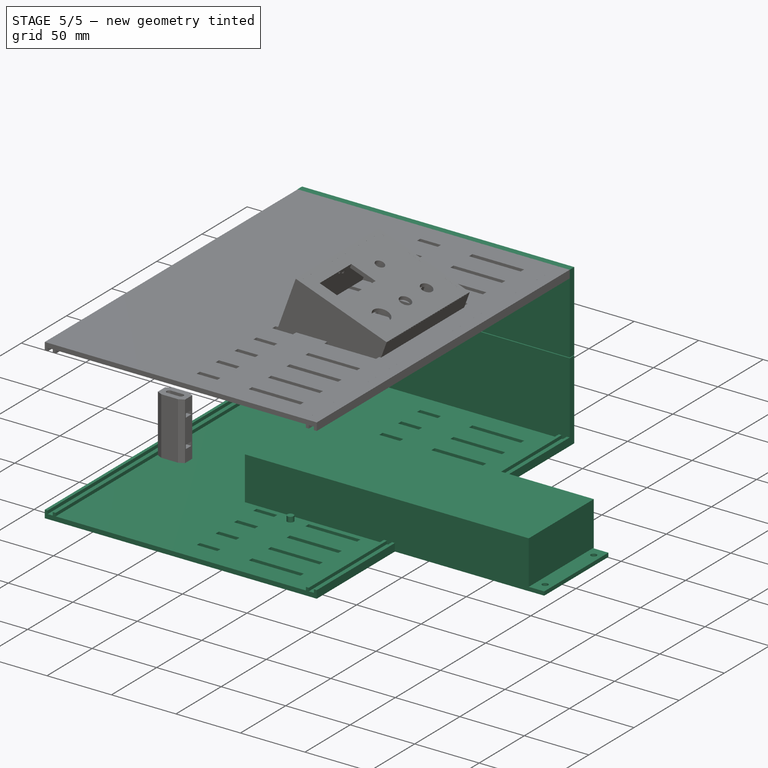
[diagram: stage 5 of 5 — iso view after this stage's code; geometry added in this stage tinted green]
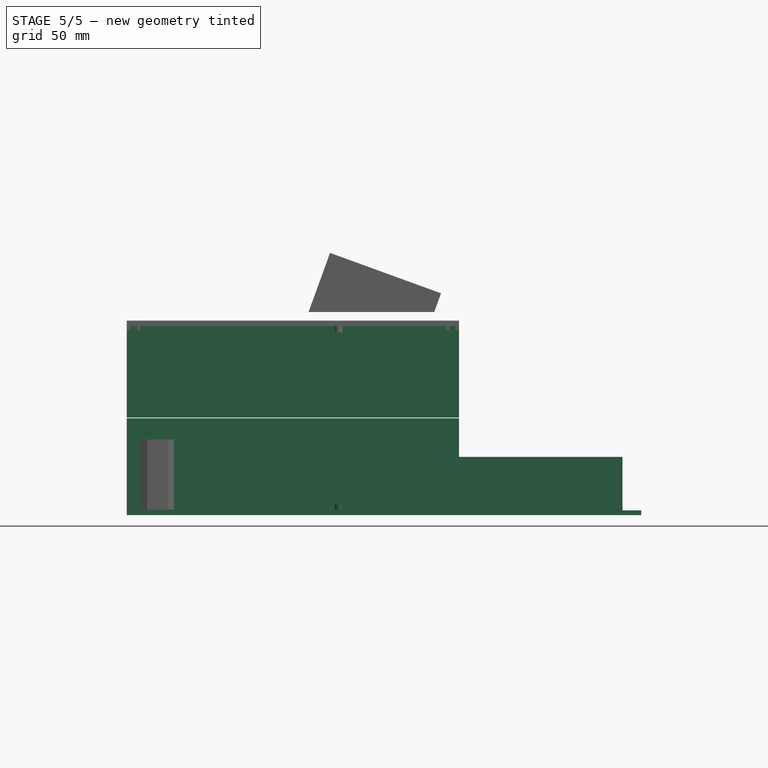
[diagram: stage 5 of 5 — front view after this stage's code; geometry added in this stage tinted green]
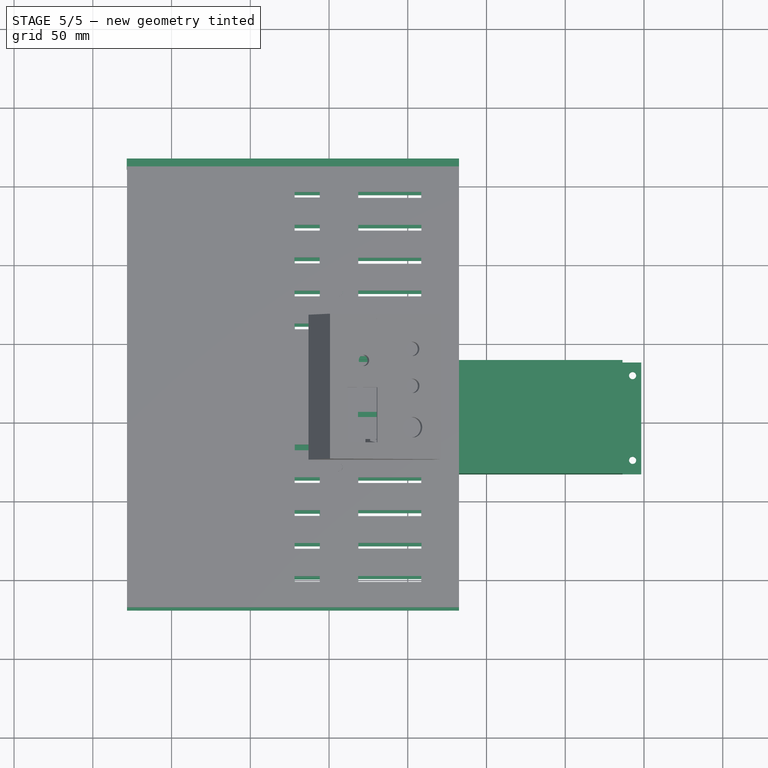
[diagram: stage 5 of 5 — top view after this stage's code; geometry added in this stage tinted green]
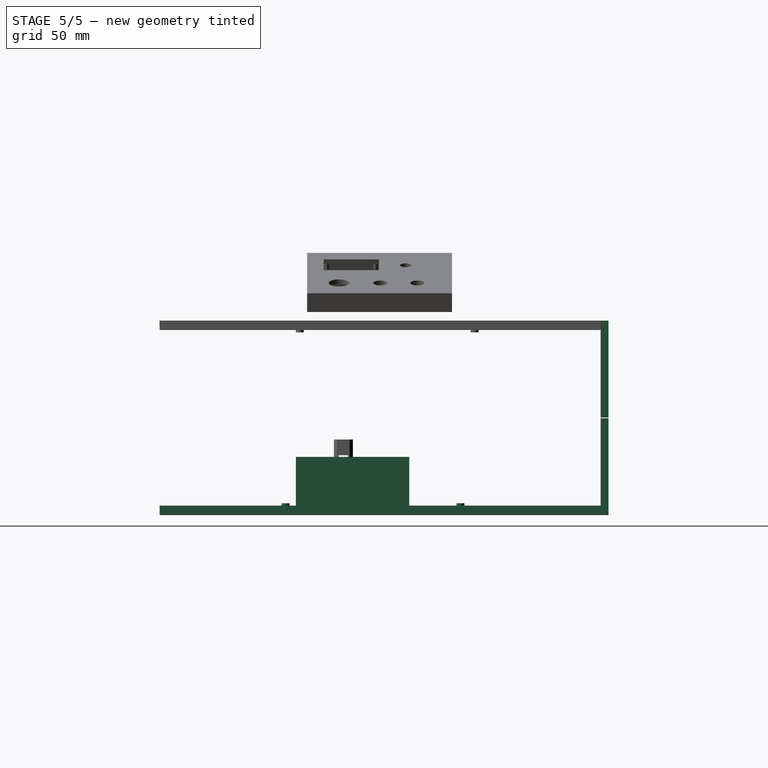
[diagram: stage 5 of 5 — right view after this stage's code; geometry added in this stage tinted green]
FEATURE [Part::Feature] Part__Feature  label="SOLID"
  shape: bbox 3.2 x 1.6 x 0.55 mm, 26 faces (baked)
FEATURE [App::Part] R_1206_3216Metric
  Group = -> [Part__Feature]
  Origin = -> Origin
  Placement = pos=(-48,-41.125,1.65) rot=(0,0,1;0rad)
FEATURE [Part::Feature] Part__Feature001  label="SOLID001"
  shape: bbox 6 x 4.9 x 1.75 mm, 156 faces (baked)
FEATURE [App::Part] SOIC_8_3_9x4_9mm_P1_27mm  label="SOIC-8_3.9x4.9mm_P1.27mm"
  Group = -> [Part__Feature001]
  Origin = -> Origin001
  Placement = pos=(-47.6,-8,1.65) rot=(0,0,1;0rad)
FEATURE [Part::Feature] Part__Feature002  label="SOLID002"
  shape: bbox 2.5 x 3 x 1.2 mm, 76 faces (baked)
FEATURE [App::Part] SOT_23  label="SOT-23"
  Group = -> [Part__Feature002]
  Origin = -> Origin002
  Placement = pos=(-41.55,-22.5,1.65) rot=(0,0,1;0rad)
FEATURE [Part::Feature] Part__Feature003  label="SOLID003"
  shape: bbox 3.2 x 1.6 x 1.6 mm, 28 faces (baked)
FEATURE [App::Part] C_1206_3216Metric
  Group = -> [Part__Feature003]
  Origin = -> Origin003
  Placement = pos=(-48,-28.7375,1.65) rot=(0,0,1;0rad)
FEATURE [Part::Feature] Part__Feature004  label="SOLID004"
  shape: bbox 15.45 x 15.98 x 14.5 mm, 53 faces (baked)
FEATURE [App::Part] CP_Radial_D12_5mm_P5_00mm  label="CP_Radial_D12.5mm_P5.00mm"
  Group = -> [Part__Feature004]
  Origin = -> Origin004
  Placement = pos=(-33,53.676,1.65) rot=(0,0,1;1.5708rad)
FEATURE [Part::Feature] Part__Feature005  label="SOLID005"
  shape: bbox 15.45 x 15.98 x 14.5 mm, 53 faces (baked)
FEATURE [App::Part] CP_Radial_D12_5mm_P5_00mm001  label="CP_Radial_D12.5mm_P5.00mm001"
  Group = -> [Part__Feature005]
  Origin = -> Origin005
  Placement = pos=(-65,53.676,1.65) rot=(0,0,1;1.5708rad)
FEATURE [Part::Feature] Part__Feature006  label="SOLID006"
  shape: bbox 3.2 x 1.6 x 0.55 mm, 26 faces (baked)
FEATURE [App::Part] R_1206_3216Metric001
  Group = -> [Part__Feature006]
  Origin = -> Origin006
  Placement = pos=(-41,-8.2,1.65) rot=(0,0,1;1.5708rad)
FEATURE [Part::Feature] Part__Feature007  label="SOLID007"
  shape: bbox 10.25 x 4.455 x 28.53 mm, 48 faces (baked)
FEATURE [App::Part] TO_220_3_Vertical  label="TO-220-3_Vertical"
  Group = -> [Part__Feature007]
  Origin = -> Origin007
  Placement = pos=(1.96,-3.445,1.65) rot=(0,0,1;0rad)
FEATURE [Part::Feature] Part__Feature008  label="SOLID008"
  shape: bbox 10.25 x 4.455 x 28.53 mm, 48 faces (baked)
FEATURE [App::Part] TO_220_3_Vertical001  label="TO-220-3_Vertical001"
  Group = -> [Part__Feature008]
  Origin = -> Origin008
  Placement = pos=(7,21.5,1.65) rot=(0,0,1;3.14159rad)
FEATURE [Part::Feature] Part__Feature009  label="SOLID009"
  Placement = pos=(0,0,1) rot=(0,0,1;0rad)
  shape: bbox 23.4 x 12.8 x 16.9 mm, 22 faces (baked)
FEATURE [App::Part] C_Rect_L24_0mm_W12_8mm_P22_50mm_MKT  label="C_Rect_L24.0mm_W12.8mm_P22.50mm_MKT"
  Group = -> [Part__Feature009]
  Origin = -> Origin009
  Placement = pos=(-23.8,21.05,1.65) rot=(0,0,-1;1.5708rad)
FEATURE [Part::Feature] Part__Feature010  label="SOLID010"
  shape: bbox 15.45 x 15.98 x 14.5 mm, 53 faces (baked)
FEATURE [App::Part] CP_Radial_D12_5mm_P5_00mm002  label="CP_Radial_D12.5mm_P5.00mm002"
  Group = -> [Part__Feature010]
  Origin = -> Origin010
  Placement = pos=(-81,53.676,1.65) rot=(0,0,1;1.5708rad)
FEATURE [Part::Feature] Part__Feature011  label="SOLID011"
  shape: bbox 15.45 x 15.98 x 14.5 mm, 53 faces (baked)
FEATURE [App::Part] CP_Radial_D12_5mm_P5_00mm003  label="CP_Radial_D12.5mm_P5.00mm003"
  Group = -> [Part__Feature011]
  Origin = -> Origin011
  Placement = pos=(-65,42.176,1.65) rot=(0,0,-1;1.5708rad)
FEATURE [Part::Feature] Part__Feature012  label="SOLID012"
  shape: bbox 2.54 x 5.08 x 10.1 mm, 72 faces (baked)
FEATURE [App::Part] PinSocket_1x02_P2_54mm_Vertical  label="PinSocket_1x02_P2.54mm_Vertical"
  Group = -> [Part__Feature012]
  Origin = -> Origin012
  Placement = pos=(-38.95,-44.125,1.65) rot=(0,0,-1;1.5708rad)
FEATURE [Part::Feature] Part__Feature013  label="SOLID013"
  shape: bbox 15.45 x 15.98 x 14.5 mm, 53 faces (baked)
FEATURE [App::Part] CP_Radial_D12_5mm_P5_00mm004  label="CP_Radial_D12.5mm_P5.00mm004"
  Group = -> [Part__Feature013]
  Origin = -> Origin013
  Placement = pos=(-97,42.176,1.65) rot=(0,0,-1;1.5708rad)
FEATURE [Part::Feature] Part__Feature014  label="SOLID014"
  shape: bbox 3.2 x 1.6 x 0.55 mm, 26 faces (baked)
FEATURE [App::Part] R_1206_3216Metric002
  Group = -> [Part__Feature014]
  Origin = -> Origin014
  Placement = pos=(-52.25,-18.2,1.65) rot=(0,0,1;0rad)
FEATURE [Part::Feature] Part__Feature015  label="SOLID015"
  shape: bbox 4 x 4.5 x 1.52 mm, 43 faces (baked)
FEATURE [App::Part] SOT_89_3  label="SOT-89-3"
  Group = -> [Part__Feature015]
  Origin = -> Origin015
  Placement = pos=(-91.5,5.4375,1.65) rot=(0,0,-1;1.5708rad)
FEATURE [Part::Feature] Part__Feature016  label="SOLID016"
  shape: bbox 22 x 12 x 12.6 mm, 113 faces (baked)
FEATURE [App::Part] PhoenixContact_MSTBA_2_5_4_G_1x04_P5_00mm_Horizontal  label="PhoenixContact_MSTBA_2,5_4-G_1x04_P5.00mm_Horizontal"
  Group = -> [Part__Feature016]
  Origin = -> Origin016
  Placement = pos=(32.2225,4.5,1.65) rot=(0,0,1;1.5708rad)
FEATURE [Part::Feature] Part__Feature017  label="SOLID017"
  shape: bbox 11.57 x 8.57 x 21.6 mm, 27 faces (baked)
FEATURE [App::Part] Converter_DCDC_RECOM_R_78HB_0_5_THT  label="Converter_DCDC_RECOM_R-78HB-0.5_THT"
  Group = -> [Part__Feature017]
  Origin = -> Origin017
  Placement = pos=(-102.793,7.4975,1.65) rot=(0,0,-1;1.5708rad)
FEATURE [Part::Feature] Part__Feature018  label="SOLID018"
  shape: bbox 10.96 x 2.706 x 5.603 mm, 17 faces (baked)
FEATURE [App::Part] R_Axial_DIN0207_L6_3mm_D2_5mm_P10_16mm_Horizontal  label="R_Axial_DIN0207_L6.3mm_D2.5mm_P10.16mm_Horizontal"
  Group = -> [Part__Feature018]
  Origin = -> Origin018
  Placement = pos=(-0.08,44,1.65) rot=(0,0,1;0rad)
FEATURE [Part::Feature] Part__Feature019  label="SOLID019"
  shape: bbox 2 x 1.25 x 1.25 mm, 28 faces (baked)
FEATURE [App::Part] C_0805_2012Metric
  Group = -> [Part__Feature019]
  Origin = -> Origin019
  Placement = pos=(-53.2,-5.4,1.65) rot=(0,0,1;1.5708rad)
FEATURE [Part::Feature] Part__Feature020  label="SOLID020"
  Placement = pos=(0,0,18) rot=(0,0,1;0rad)
  shape: bbox 15.45 x 15.98 x 14.5 mm, 53 faces (baked)
FEATURE [App::Part] CP_Radial_D12_5mm_P5_00mm005  label="CP_Radial_D12.5mm_P5.00mm005"
  Group = -> [Part__Feature020]
  Origin = -> Origin020
  Placement = pos=(-97,53.676,1.65) rot=(0,0,1;1.5708rad)
FEATURE [Part::Feature] Part__Feature021  label="SOLID021"
  shape: bbox 3.2 x 1.6 x 0.55 mm, 26 faces (baked)
FEATURE [App::Part] R_1206_3216Metric003
  Group = -> [Part__Feature021]
  Origin = -> Origin021
  Placement = pos=(-49.5,-24.2,1.65) rot=(0,0,1;1.5708rad)
FEATURE [Part::Feature] Part__Feature022  label="SOLID022"
  shape: bbox 10.96 x 2.706 x 5.603 mm, 17 faces (baked)
FEATURE [App::Part] R_Axial_DIN0207_L6_3mm_D2_5mm_P10_16mm_Horizontal001  label="R_Axial_DIN0207_L6.3mm_D2.5mm_P10.16mm_Horizontal001"
  Group = -> [Part__Feature022]
  Origin = -> Origin022
  Placement = pos=(-0.58,8.945,1.65) rot=(0,0,1;0rad)
FEATURE [Part::Feature] Part__Feature023  label="SOLID023"
  shape: bbox 3.4 x 3.8 x 10.8 mm, 16 faces (baked)
FEATURE [App::Part] LED_D3_0mm  label="LED_D3.0mm"
  Group = -> [Part__Feature023]
  Origin = -> Origin023
  Placement = pos=(-45.525,-13.8,1.65) rot=(0,0,1;3.14159rad)
FEATURE [Part::Feature] Part__Feature024  label="SOLID024"
  shape: bbox 3.2 x 1.6 x 1.6 mm, 28 faces (baked)
FEATURE [App::Part] C_1206_3216Metric001
  Group = -> [Part__Feature024]
  Origin = -> Origin024
  Placement = pos=(-100.5,13,1.65) rot=(0,0,1;0rad)
FEATURE [Part::Feature] Part__Feature025  label="SOLID025"
  shape: bbox 2 x 1.25 x 1.25 mm, 28 faces (baked)
FEATURE [App::Part] C_0805_2012Metric001
  Group = -> [Part__Feature025]
  Origin = -> Origin025
  Placement = pos=(-91.25,1.25,1.65) rot=(0,0,1;3.14159rad)
FEATURE [Part::Feature] Part__Feature026  label="SOLID026"
  shape: bbox 3.2 x 1.6 x 0.55 mm, 26 faces (baked)
FEATURE [App::Part] R_1206_3216Metric004
  Group = -> [Part__Feature026]
  Origin = -> Origin026
  Placement = pos=(-48,-31.7375,1.65) rot=(0,0,1;0rad)
FEATURE [Part::Feature] Part__Feature027  label="SOLID027"
  shape: bbox 15.45 x 15.98 x 14.5 mm, 53 faces (baked)
FEATURE [App::Part] CP_Radial_D12_5mm_P5_00mm006  label="CP_Radial_D12.5mm_P5.00mm006"
  Group = -> [Part__Feature027]
  Origin = -> Origin027
  Placement = pos=(-49,42.176,1.65) rot=(0,0,-1;1.5708rad)
FEATURE [Part::Feature] Part__Feature028  label="SOLID028"
  shape: bbox 12.16 x 12 x 12.6 mm, 63 faces (baked)
FEATURE [App::Part] PhoenixContact_MSTBA_2_5_2_G_5_08_1x02_P5_08mm_Horizontal  label="PhoenixContact_MSTBA_2,5_2-G-5,08_1x02_P5.08mm_Horizontal"
  Group = -> [Part__Feature028]
  Origin = -> Origin028
  Placement = pos=(-104.222,25.54,1.65) rot=(0,0,-1;1.5708rad)
FEATURE [Part::Feature] Part__Feature029  label="SOLID029"
  shape: bbox 3.2 x 1.6 x 1.6 mm, 28 faces (baked)
FEATURE [App::Part] C_1206_3216Metric002
  Group = -> [Part__Feature029]
  Origin = -> Origin029
  Placement = pos=(-48.0125,-44.125,1.65) rot=(0,0,1;0rad)
FEATURE [Part::Feature] Part__Feature030  label="SOLID030"
  shape: bbox 56.94 x 12.5 x 15.5 mm, 14 faces (baked)
FEATURE [App::Part] R_Axial_Power_L48_0mm_W12_5mm_P55_88mm  label="R_Axial_Power_L48.0mm_W12.5mm_P55.88mm"
  Group = -> [Part__Feature030]
  Origin = -> Origin030
  Placement = pos=(-22.94,54,1.65) rot=(0,0,1;0rad)
FEATURE [Part::Feature] Part__Feature031  label="SOLID031"
  shape: bbox 15.45 x 15.98 x 14.5 mm, 53 faces (baked)
FEATURE [App::Part] CP_Radial_D12_5mm_P5_00mm007  label="CP_Radial_D12.5mm_P5.00mm007"
  Group = -> [Part__Feature031]
  Origin = -> Origin031
  Placement = pos=(-33,42.176,1.65) rot=(0,0,-1;1.5708rad)
FEATURE [Part::Feature] Part__Feature032  label="SOLID032"
  shape: bbox 3.2 x 1.6 x 0.55 mm, 26 faces (baked)
FEATURE [App::Part] R_1206_3216Metric005
  Group = -> [Part__Feature032]
  Origin = -> Origin032
  Placement = pos=(-52.25,-14.8,1.65) rot=(0,0,1;0rad)
FEATURE [Part::Feature] Part__Feature033  label="SOLID033"
  shape: bbox 3.2 x 1.6 x 1.6 mm, 28 faces (baked)
FEATURE [App::Part] C_1206_3216Metric003
  Group = -> [Part__Feature033]
  Origin = -> Origin033
  Placement = pos=(-48,-37.75,1.65) rot=(0,0,1;0rad)
FEATURE [Part::Feature] Part__Feature034  label="SOLID034"
  shape: bbox 56.94 x 12.5 x 15.5 mm, 14 faces (baked)
FEATURE [App::Part] R_Axial_Power_L48_0mm_W12_5mm_P55_88mm001  label="R_Axial_Power_L48.0mm_W12.5mm_P55.88mm001"
  Group = -> [Part__Feature034]
  Origin = -> Origin034
  Placement = pos=(-22.94,35,1.65) rot=(0,0,1;0rad)
FEATURE [Part::Feature] Part__Feature035  label="SOLID035"
  shape: bbox 15.45 x 15.98 x 14.5 mm, 53 faces (baked)
FEATURE [App::Part] CP_Radial_D12_5mm_P5_00mm008  label="CP_Radial_D12.5mm_P5.00mm008"
  Group = -> [Part__Feature035]
  Origin = -> Origin035
  Placement = pos=(-81,42.176,1.65) rot=(0,0,-1;1.5708rad)
FEATURE [Part::Feature] Part__Feature036  label="SOLID036"
  shape: bbox 56.94 x 12.5 x 15.5 mm, 14 faces (baked)
FEATURE [App::Part] R_Axial_Power_L48_0mm_W12_5mm_P55_88mm002  label="R_Axial_Power_L48.0mm_W12.5mm_P55.88mm002"
  Group = -> [Part__Feature036]
  Origin = -> Origin036
  Placement = pos=(-87.94,23,1.65) rot=(0,0,1;0rad)
FEATURE [Part::Feature] Part__Feature037  label="SOLID037"
  shape: bbox 3.4 x 3.8 x 10.8 mm, 16 faces (baked)
FEATURE [App::Part] LED_D3_0mm001  label="LED_D3.0mm001"
  Group = -> [Part__Feature037]
  Origin = -> Origin037
  Placement = pos=(-45.525,-18.6,1.65) rot=(0,0,1;3.14159rad)
FEATURE [Part::Feature] Part__Feature038  label="SOLID038"
  shape: bbox 2.54 x 7.62 x 10.1 mm, 103 faces (baked)
FEATURE [App::Part] PinSocket_1x03_P2_54mm_Vertical  label="PinSocket_1x03_P2.54mm_Vertical"
  Group = -> [Part__Feature038]
  Origin = -> Origin038
  Placement = pos=(-91.525,-45.725,1.65) rot=(0,0,1;3.14159rad)
FEATURE [Part::Feature] Part__Feature039  label="SOLID039"
  shape: bbox 2 x 1.25 x 1.25 mm, 28 faces (baked)
FEATURE [App::Part] C_0805_2012Metric002
  Group = -> [Part__Feature039]
  Origin = -> Origin039
  Placement = pos=(-53.25,-1,1.65) rot=(0,0,-1;1.5708rad)
FEATURE [Part::Feature] Part__Feature040  label="SOLID040"
  shape: bbox 3.2 x 1.6 x 0.55 mm, 26 faces (baked)
FEATURE [App::Part] R_1206_3216Metric006
  Group = -> [Part__Feature040]
  Origin = -> Origin040
  Placement = pos=(-46.5,-24.2,1.65) rot=(0,0,1;1.5708rad)
FEATURE [Part::Feature] Part__Feature041  label="SOLID041"
  shape: bbox 15.45 x 15.98 x 14.5 mm, 53 faces (baked)
FEATURE [App::Part] CP_Radial_D12_5mm_P5_00mm009  label="CP_Radial_D12.5mm_P5.00mm009"
  Group = -> [Part__Feature041]
  Origin = -> Origin041
  Placement = pos=(-49,53.676,1.65) rot=(0,0,1;1.5708rad)
FEATURE [Part::Feature] Part__Feature042  label="SOLID042"
  shape: bbox 2.54 x 35.56 x 10.1 mm, 444 faces (baked)
FEATURE [App::Part] PinSocket_1x14_P2_54mm_Vertical  label="PinSocket_1x14_P2.54mm_Vertical"
  Group = -> [Part__Feature042]
  Origin = -> Origin042
  Placement = pos=(-91.475,-2.8,1.65) rot=(0,0,1;0rad)
FEATURE [Part::Feature] Part__Feature043  label="SOLID043"
  shape: bbox 6.128 x 6.515 x 7 mm, 49 faces (baked)
FEATURE [App::Part] CP_Radial_D5_0mm_P2_00mm  label="CP_Radial_D5.0mm_P2.00mm"
  Group = -> [Part__Feature043]
  Origin = -> Origin043
  Placement = pos=(-95,23.5551,1.65) rot=(0,0,-1;1.5708rad)
FEATURE [Part::Feature] Part__Feature044  label="SOLID044"
  shape: bbox 2 x 1.25 x 1.25 mm, 28 faces (baked)
FEATURE [App::Part] C_0805_2012Metric003
  Group = -> [Part__Feature044]
  Origin = -> Origin044
  Placement = pos=(-35.7,-43.2,1.65) rot=(0,0,-1;1.5708rad)
FEATURE [Part::Feature] Part__Feature045  label="SOLID045"
  shape: bbox 6.128 x 6.515 x 7 mm, 49 faces (baked)
FEATURE [App::Part] CP_Radial_D5_0mm_P2_00mm001  label="CP_Radial_D5.0mm_P2.00mm001"
  Group = -> [Part__Feature045]
  Origin = -> Origin045
  Placement = pos=(-105,-4.54489,1.65) rot=(0,0,-1;1.5708rad)
FEATURE [Part::Feature] Part__Feature046  label="SOLID046"
  shape: bbox 3.2 x 1.6 x 0.55 mm, 26 faces (baked)
FEATURE [App::Part] R_1206_3216Metric007
  Group = -> [Part__Feature046]
  Origin = -> Origin046
  Placement = pos=(-48,-34.75,1.65) rot=(0,0,1;0rad)
FEATURE [Part::Feature] Part__Feature047  label="power_module PCB"
  shape: bbox 157.8 x 122.4 x 1.6 mm, 152 faces (baked)
FEATURE [App::Part] power_module_1  label="power_module 1"
  Group = -> [R_1206_3216Metric,SOIC_8_3_9x4_9mm_P1_27mm,SOT_23,C_1206_3216Metric,CP_Radial_D12_5mm_P5_00mm,CP_Radial_D12_5mm_P5_00mm001,R_1206_3216Metric001,TO_220_3_Vertical,TO_220_3_Vertical001,C_Rect_L24_0mm_W12_8mm_P22_50mm_MKT,CP_Radial_D12_5mm_P5_00mm002,CP_Radial_D12_5mm_P5_00mm003,PinSocket_1x02_P2_54mm_Vertical,CP_Radial_D12_5mm_P5_00mm004,R_1206_3216Metric002,SOT_89_3,+32 more]
  Origin = -> Origin047
  Placement = pos=(-124.2,60.6,46) rot=(0,0,1;3.14159rad)
FEATURE [Sketcher::SketchObject] Sketch
  FullyConstrained = false
  sketch-geometry (8):
    g0: LineSegment StartX=-95.7552 StartY=-32.6343 StartZ=0 EndX=-95.7552 EndY=38.3657 EndZ=0
    g1: LineSegment StartX=-95.7552 StartY=38.3657 StartZ=0 EndX=148.245 EndY=38.3657 EndZ=0
    g2: LineSegment StartX=148.245 StartY=38.3657 StartZ=0 EndX=148.245 EndY=-32.6343 EndZ=0
    g3: LineSegment StartX=148.245 StartY=-32.6343 StartZ=0 EndX=-95.7552 EndY=-32.6343 EndZ=0
    g4: Circle CenterX=-90.255 CenterY=29.7657 CenterZ=0 NormalX=0 NormalY=0 NormalZ=1 AngleXU=0 Radius=2.25
    g5: Circle CenterX=-90.2549 CenterY=-24.0343 CenterZ=0 NormalX=0 NormalY=0 NormalZ=1 AngleXU=0 Radius=2.25
    g6: Circle CenterX=142.745 CenterY=30.0126 CenterZ=0 NormalX=0 NormalY=0 NormalZ=1 AngleXU=0 Radius=2.25
    g7: Circle CenterX=142.745 CenterY=-23.7874 CenterZ=0 NormalX=0 NormalY=0 NormalZ=1 AngleXU=0 Radius=2.25
  constraints (21):
    c: Vertical(g0)
    c: Coincident(g1,g0)
    c: Horizontal(g1)
    c: Coincident(g2,g1)
    c: Vertical(g2)
    c: Coincident(g3,g2)
    c: Coincident(g3,g0)
    c: Horizontal(g3)
    c: DistanceY(g0,g0) = 71
    c: DistanceX(g1,g1) = 244
    c: Diameter(g4) = 4.5
    c: Diameter(g6) = 4.5
    c: Diameter(g7) = 4.5
    c: Diameter(g5) = 4.5
    c: Distance(g5,g4) = 53.8
    c: Distance(g7,g6) = 53.8
    c: Distance(g6,g4) = 233
    c: Distance(g6,g2) = 5.5
    c: Distance(g4,g1) = 8.6
    c: Distance(g5,g7) = 233
    c: Distance(g5,g3) = 8.6
FEATURE [Part::Extrusion] Extrude
  Base = -> Sketch
  Dir = (0,0,1)
  DirMode = 2
  FaceMakerClass = Part::FaceMakerBullseye
  LengthFwd = 3
  LengthRev = 0
  Solid = true
  Symmetric = false
FEATURE [Part::Box] Box  label="Cube"
  AttacherType = Attacher::AttachEngine3D
  Height = 37
  Length = 220
  Placement = pos=(-83.7,-32.7,0) rot=(0,0,1;0rad)
  Width = 72
FEATURE [App::LinkGroup] LinkGroup  label="zdroj"
  ElementList = -> [Box,Extrude]
  LinkMode = 0
  Placement = pos=(-85.96,47.1448,3.6) rot=(0,0,-1;1.5708rad)
FEATURE [Sketcher::SketchObject] Sketch001
  FullyConstrained = false
  sketch-geometry (94):
    g0: LineSegment StartX=-169.854 StartY=160.823 StartZ=0 EndX=24.1463 EndY=160.823 EndZ=0
    g1: LineSegment StartX=24.1463 StartY=160.823 StartZ=0 EndX=24.1463 EndY=-119.177 EndZ=0
    g2: LineSegment StartX=24.1463 StartY=-119.177 StartZ=0 EndX=-169.854 EndY=-119.177 EndZ=0
    g3: LineSegment StartX=-169.854 StartY=-119.177 StartZ=0 EndX=-169.854 EndY=160.823 EndZ=0
    g4: LineSegment StartX=-31.4959 StartY=144.646 StartZ=0 EndX=8.57413 EndY=144.646 EndZ=0
    g5: LineSegment StartX=8.57413 StartY=144.646 StartZ=0 EndX=8.57413 EndY=140.903 EndZ=0
    g6: LineSegment StartX=8.57413 StartY=140.903 StartZ=0 EndX=-31.4959 EndY=140.903 EndZ=0
    g7: LineSegment StartX=-31.4959 StartY=140.903 StartZ=0 EndX=-31.4959 EndY=144.646 EndZ=0
    g8: LineSegment StartX=-31.3517 StartY=123.547 StartZ=0 EndX=8.68947 EndY=123.547 EndZ=0
    g9: LineSegment StartX=8.68947 StartY=123.547 StartZ=0 EndX=8.68947 EndY=119.934 EndZ=0
    g10: LineSegment StartX=8.68947 StartY=119.934 StartZ=0 EndX=-31.3517 EndY=119.934 EndZ=0
    g11: LineSegment StartX=-31.3517 StartY=119.934 StartZ=0 EndX=-31.3517 EndY=123.547 EndZ=0
    g12: LineSegment StartX=-31.485 StartY=102.88 StartZ=0 EndX=8.55618 EndY=102.88 EndZ=0
    g13: LineSegment StartX=8.55618 StartY=102.88 StartZ=0 EndX=8.55618 EndY=99.0977 EndZ=0
    g14: LineSegment StartX=8.55618 StartY=99.0977 StartZ=0 EndX=-31.485 EndY=99.0977 EndZ=0
    g15: LineSegment StartX=-31.485 StartY=99.0977 StartZ=0 EndX=-31.485 EndY=102.88 EndZ=0
    g16: LineSegment StartX=-31.4894 StartY=81.8592 StartZ=0 EndX=8.55181 EndY=81.8592 EndZ=0
    g17: LineSegment StartX=8.55181 StartY=81.8592 StartZ=0 EndX=8.55181 EndY=78.3129 EndZ=0
    g18: LineSegment StartX=8.55181 StartY=78.3129 StartZ=0 EndX=-31.4894 EndY=78.3129 EndZ=0
    g19: LineSegment StartX=-31.4894 StartY=78.3129 StartZ=0 EndX=-31.4894 EndY=81.8592 EndZ=0
    g20: LineSegment StartX=-31.5244 StartY=60.9541 StartZ=0 EndX=8.58843 EndY=60.9541 EndZ=0
    g21: LineSegment StartX=8.58843 StartY=60.9541 StartZ=0 EndX=8.58843 EndY=57.3927 EndZ=0
    g22: LineSegment StartX=8.58843 StartY=57.3927 StartZ=0 EndX=-31.5244 EndY=57.3927 EndZ=0
    g23: LineSegment StartX=-31.5244 StartY=57.3927 StartZ=0 EndX=-31.5244 EndY=60.9541 EndZ=0
    g24: LineSegment StartX=-31.5895 StartY=39.9693 StartZ=0 EndX=8.45174 EndY=39.9693 EndZ=0
    g25: LineSegment StartX=8.45174 StartY=39.9693 StartZ=0 EndX=8.45174 EndY=36.6787 EndZ=0
    g26: LineSegment StartX=8.45174 StartY=36.6787 StartZ=0 EndX=-31.5895 EndY=36.6787 EndZ=0
    g27: LineSegment StartX=-31.5895 StartY=36.6787 StartZ=0 EndX=-31.5895 EndY=39.9693 EndZ=0
    g28: LineSegment StartX=-31.4418 StartY=5.07029 StartZ=0 EndX=8.56749 EndY=5.07029 EndZ=0
    g29: LineSegment StartX=8.56749 StartY=5.07029 StartZ=0 EndX=8.56749 EndY=1.30652 EndZ=0
    g30: LineSegment StartX=8.56749 StartY=1.30652 StartZ=0 EndX=-31.4418 EndY=1.30652 EndZ=0
    g31: LineSegment StartX=-31.4418 StartY=1.30652 StartZ=0 EndX=-31.4418 EndY=5.07029 EndZ=0
    g32: LineSegment StartX=-31.5026 StartY=-15.6137 StartZ=0 EndX=8.49379 EndY=-15.6137 EndZ=0
    g33: LineSegment StartX=8.49379 StartY=-15.6137 StartZ=0 EndX=8.49379 EndY=-19.5496 EndZ=0
    g34: LineSegment StartX=8.49379 StartY=-19.5496 StartZ=0 EndX=-31.5026 EndY=-19.5496 EndZ=0
    g35: LineSegment StartX=-31.5026 StartY=-19.5496 StartZ=0 EndX=-31.5026 EndY=-15.6137 EndZ=0
    g36: LineSegment StartX=-31.458 StartY=-36.5959 StartZ=0 EndX=8.59703 EndY=-36.5959 EndZ=0
    g37: LineSegment StartX=8.59703 StartY=-36.5959 StartZ=0 EndX=8.59703 EndY=-40.3785 EndZ=0
    g38: LineSegment StartX=8.59703 StartY=-40.3785 StartZ=0 EndX=-31.458 EndY=-40.3785 EndZ=0
    g39: LineSegment StartX=-31.458 StartY=-40.3785 StartZ=0 EndX=-31.458 EndY=-36.5959 EndZ=0
    g40: LineSegment StartX=-31.4658 StartY=-57.3464 StartZ=0 EndX=8.57543 EndY=-57.3464 EndZ=0
    g41: LineSegment StartX=8.57543 StartY=-57.3464 StartZ=0 EndX=8.57543 EndY=-61.1532 EndZ=0
    g42: LineSegment StartX=8.57543 StartY=-61.1532 StartZ=0 EndX=-31.4658 EndY=-61.1532 EndZ=0
    g43: LineSegment StartX=-31.4658 StartY=-61.1532 StartZ=0 EndX=-31.4658 EndY=-57.3464 EndZ=0
    g44: LineSegment StartX=-31.4377 StartY=-78.3871 StartZ=0 EndX=8.60351 EndY=-78.3871 EndZ=0
    g45: LineSegment StartX=8.60352 StartY=-78.3871 StartZ=0 EndX=8.60352 EndY=-82.0649 EndZ=0
    g46: LineSegment StartX=8.60352 StartY=-82.0649 StartZ=0 EndX=-31.4377 EndY=-82.0649 EndZ=0
    g47: LineSegment StartX=-31.4377 StartY=-82.0649 StartZ=0 EndX=-31.4377 EndY=-78.3871 EndZ=0
    g48: LineSegment StartX=-31.4694 StartY=-99.2069 StartZ=0 EndX=8.57177 EndY=-99.2069 EndZ=0
    g49: LineSegment StartX=8.57177 StartY=-99.2069 StartZ=0 EndX=8.57177 EndY=-102.99 EndZ=0
    g50: LineSegment StartX=8.57177 StartY=-102.99 StartZ=0 EndX=-31.4694 EndY=-102.99 EndZ=0
    g51: LineSegment StartX=-31.4694 StartY=-102.99 StartZ=0 EndX=-31.4694 EndY=-99.2069 EndZ=0
    g52: LineSegment StartX=-71.9221 StartY=144.613 StartZ=0 EndX=-55.885 EndY=144.613 EndZ=0
    g53: LineSegment StartX=-55.885 StartY=144.613 StartZ=0 EndX=-55.885 EndY=141.023 EndZ=0
    g54: LineSegment StartX=-55.885 StartY=141.023 StartZ=0 EndX=-71.9221 EndY=141.023 EndZ=0
    g55: LineSegment StartX=-71.9221 StartY=141.023 StartZ=0 EndX=-71.9221 EndY=144.613 EndZ=0
    g56: LineSegment StartX=-71.8647 StartY=123.651 StartZ=0 EndX=-55.7958 EndY=123.651 EndZ=0
    g57: LineSegment StartX=-55.7958 StartY=123.651 StartZ=0 EndX=-55.7958 EndY=119.953 EndZ=0
    g58: LineSegment StartX=-55.7958 StartY=119.953 StartZ=0 EndX=-71.8647 EndY=119.953 EndZ=0
    g59: LineSegment StartX=-71.8647 StartY=119.953 StartZ=0 EndX=-71.8647 EndY=123.651 EndZ=0
    g60: LineSegment StartX=-71.8263 StartY=102.784 StartZ=0 EndX=-55.7574 EndY=102.784 EndZ=0
    g61: LineSegment StartX=-55.7574 StartY=102.784 StartZ=0 EndX=-55.7574 EndY=99.1063 EndZ=0
    g62: LineSegment StartX=-55.7574 StartY=99.1063 StartZ=0 EndX=-71.8263 EndY=99.1063 EndZ=0
    g63: LineSegment StartX=-71.8263 StartY=99.1063 StartZ=0 EndX=-71.8263 EndY=102.784 EndZ=0
    g64: LineSegment StartX=-71.8806 StartY=81.7976 StartZ=0 EndX=-55.8916 EndY=81.7976 EndZ=0
    g65: LineSegment StartX=-55.8916 StartY=81.7976 StartZ=0 EndX=-55.8916 EndY=78.2054 EndZ=0
    g66: LineSegment StartX=-55.8916 StartY=78.2054 StartZ=0 EndX=-71.8806 EndY=78.2054 EndZ=0
    g67: LineSegment StartX=-71.8806 StartY=78.2054 StartZ=0 EndX=-71.8806 EndY=81.7976 EndZ=0
    g68: LineSegment StartX=-71.7872 StartY=61.0855 StartZ=0 EndX=-55.7501 EndY=61.0855 EndZ=0
    g69: LineSegment StartX=-55.7501 StartY=61.0855 StartZ=0 EndX=-55.7501 EndY=57.4406 EndZ=0
    g70: LineSegment StartX=-55.7501 StartY=57.4406 StartZ=0 EndX=-71.7872 EndY=57.4406 EndZ=0
    g71: LineSegment StartX=-71.7872 StartY=57.4406 StartZ=0 EndX=-71.7872 EndY=61.0855 EndZ=0
    g72: LineSegment StartX=-71.8954 StartY=-15.729 StartZ=0 EndX=-55.8265 EndY=-15.729 EndZ=0
    g73: LineSegment StartX=-55.8265 StartY=-15.729 StartZ=0 EndX=-55.8265 EndY=-19.4269 EndZ=0
    g74: LineSegment StartX=-55.8265 StartY=-19.4269 StartZ=0 EndX=-71.8954 EndY=-19.4269 EndZ=0
    g75: LineSegment StartX=-71.8954 StartY=-19.4269 StartZ=0 EndX=-71.8954 EndY=-15.729 EndZ=0
    g76: LineSegment StartX=-71.9149 StartY=-36.5946 StartZ=0 EndX=-55.846 EndY=-36.5946 EndZ=0
    g77: LineSegment StartX=-55.846 StartY=-36.5946 StartZ=0 EndX=-55.846 EndY=-40.2924 EndZ=0
    g78: LineSegment StartX=-55.846 StartY=-40.2924 StartZ=0 EndX=-71.9149 EndY=-40.2924 EndZ=0
    g79: LineSegment StartX=-71.9149 StartY=-40.2924 StartZ=0 EndX=-71.9149 EndY=-36.5946 EndZ=0
    g80: LineSegment StartX=-72.0196 StartY=-57.6194 StartZ=0 EndX=-55.9507 EndY=-57.6194 EndZ=0
    g81: LineSegment StartX=-55.9507 StartY=-57.6194 StartZ=0 EndX=-55.9507 EndY=-61.3701 EndZ=0
    g82: LineSegment StartX=-55.9507 StartY=-61.3701 StartZ=0 EndX=-72.0196 EndY=-61.3701 EndZ=0
    g83: LineSegment StartX=-72.0196 StartY=-61.3701 StartZ=0 EndX=-72.0196 EndY=-57.6194 EndZ=0
    g84: LineSegment StartX=-71.8795 StartY=-78.3705 StartZ=0 EndX=-55.8692 EndY=-78.3705 EndZ=0
    g85: LineSegment StartX=-55.8692 StartY=-78.3705 StartZ=0 EndX=-55.8692 EndY=-82.09 EndZ=0
    g86: LineSegment StartX=-55.8692 StartY=-82.09 StartZ=0 EndX=-71.8795 EndY=-82.09 EndZ=0
    g87: LineSegment StartX=-71.8795 StartY=-82.09 StartZ=0 EndX=-71.8795 EndY=-78.3705 EndZ=0
    g88: LineSegment StartX=-71.8804 StartY=-99.4067 StartZ=0 EndX=-55.8634 EndY=-99.4067 EndZ=0
    g89: LineSegment StartX=-55.8634 StartY=-99.4067 StartZ=0 EndX=-55.8634 EndY=-102.891 EndZ=0
    g90: LineSegment StartX=-55.8634 StartY=-102.891 StartZ=0 EndX=-71.8804 EndY=-102.891 EndZ=0
    g91: LineSegment StartX=-71.8804 StartY=-102.891 StartZ=0 EndX=-71.8804 EndY=-99.4067 EndZ=0
    g92: Circle CenterX=-43.8537 CenterY=71.8226 CenterZ=0 NormalX=0 NormalY=0 NormalZ=1 AngleXU=0 Radius=2.5
    g93: Circle CenterX=-43.8537 CenterY=-39.1774 CenterZ=0 NormalX=0 NormalY=0 NormalZ=1 AngleXU=0 Radius=2.5
  constraints (192):
    c: Coincident(g0,g1)
    c: Coincident(g1,g2)
    c: Coincident(g2,g3)
    c: Coincident(g3,g0)
    c: Horizontal(g0)
    c: Horizontal(g2)
    c: Vertical(g1)
    c: Vertical(g3)
    c: Distance(g1) = 280
    c: Distance(g0) = 194
    c: Coincident(g4,g5)
    c: Coincident(g5,g6)
    c: Coincident(g6,g7)
    c: Coincident(g7,g4)
    c: Horizontal(g4)
    c: Horizontal(g6)
    c: Vertical(g5)
    c: Vertical(g7)
    c: Coincident(g8,g9)
    c: Coincident(g9,g10)
    c: Coincident(g10,g11)
    c: Coincident(g11,g8)
    c: Horizontal(g8)
    c: Horizontal(g10)
    c: Vertical(g9)
    c: Vertical(g11)
    c: Coincident(g12,g13)
    c: Coincident(g13,g14)
    c: Coincident(g14,g15)
    c: Coincident(g15,g12)
    c: Horizontal(g12)
    c: Horizontal(g14)
    c: Vertical(g13)
    c: Vertical(g15)
    c: Coincident(g16,g17)
    c: Coincident(g17,g18)
    c: Coincident(g18,g19)
    c: Coincident(g19,g16)
    c: Horizontal(g16)
    c: Horizontal(g18)
    c: Vertical(g17)
    c: Vertical(g19)
    c: Coincident(g20,g21)
    c: Coincident(g21,g22)
    c: Coincident(g22,g23)
    c: Coincident(g23,g20)
    c: Horizontal(g20)
    c: Horizontal(g22)
    c: Vertical(g21)
    c: Vertical(g23)
    c: Coincident(g24,g25)
    c: Coincident(g25,g26)
    c: Coincident(g26,g27)
    c: Coincident(g27,g24)
    c: Horizontal(g24)
    c: Horizontal(g26)
    c: Vertical(g25)
    c: Vertical(g27)
    c: Coincident(g28,g29)
    c: Coincident(g29,g30)
    c: Coincident(g30,g31)
    c: Coincident(g31,g28)
    c: Horizontal(g28)
    c: Horizontal(g30)
    c: Vertical(g29)
    c: Vertical(g31)
    c: Coincident(g32,g33)
    c: Coincident(g33,g34)
    c: Coincident(g34,g35)
    c: Coincident(g35,g32)
    c: Horizontal(g32)
    c: Horizontal(g34)
    c: Vertical(g33)
    c: Vertical(g35)
    c: Coincident(g36,g37)
    c: Coincident(g37,g38)
    c: Coincident(g38,g39)
    c: Coincident(g39,g36)
    c: Horizontal(g36)
    c: Horizontal(g38)
    c: Vertical(g37)
    c: Vertical(g39)
    c: Coincident(g40,g41)
    c: Coincident(g41,g42)
    c: Coincident(g42,g43)
    c: Coincident(g43,g40)
    c: Horizontal(g40)
    c: Horizontal(g42)
    c: Vertical(g41)
    c: Vertical(g43)
    c: Coincident(g44,g45)
    c: Coincident(g45,g46)
    c: Coincident(g46,g47)
    c: Coincident(g47,g44)
    c: Horizontal(g44)
    c: Horizontal(g46)
    c: Vertical(g45)
    c: Vertical(g47)
    c: Coincident(g48,g49)
    c: Coincident(g49,g50)
    c: Coincident(g50,g51)
    c: Coincident(g51,g48)
    c: Horizontal(g48)
    c: Horizontal(g50)
    c: Vertical(g49)
    c: Vertical(g51)
    c: Coincident(g52,g53)
    c: Coincident(g53,g54)
    c: Coincident(g54,g55)
    c: Coincident(g55,g52)
    c: Horizontal(g52)
    c: Horizontal(g54)
    c: Vertical(g53)
    c: Vertical(g55)
    c: Coincident(g56,g57)
    c: Coincident(g57,g58)
    c: Coincident(g58,g59)
    c: Coincident(g59,g56)
    c: Horizontal(g56)
    c: Horizontal(g58)
    c: Vertical(g57)
    c: Vertical(g59)
    c: Coincident(g60,g61)
    c: Coincident(g61,g62)
    c: Coincident(g62,g63)
    c: Coincident(g63,g60)
    c: Horizontal(g60)
    c: Horizontal(g62)
    c: Vertical(g61)
    c: Vertical(g63)
    c: Coincident(g64,g65)
    c: Coincident(g65,g66)
    c: Coincident(g66,g67)
    c: Coincident(g67,g64)
    c: Horizontal(g64)
    c: Horizontal(g66)
    c: Vertical(g65)
    c: Vertical(g67)
    c: Coincident(g68,g69)
    c: Coincident(g69,g70)
    c: Coincident(g70,g71)
    c: Coincident(g71,g68)
    c: Horizontal(g68)
    c: Horizontal(g70)
    c: Vertical(g69)
    c: Vertical(g71)
    c: Coincident(g72,g73)
    c: Coincident(g73,g74)
    c: Coincident(g74,g75)
    c: Coincident(g75,g72)
    c: Horizontal(g72)
    c: Horizontal(g74)
    c: Vertical(g73)
    c: Vertical(g75)
    c: Coincident(g76,g77)
    c: Coincident(g77,g78)
    c: Coincident(g78,g79)
    c: Coincident(g79,g76)
    c: Horizontal(g76)
    c: Horizontal(g78)
    c: Vertical(g77)
    c: Vertical(g79)
    c: Coincident(g80,g81)
    c: Coincident(g81,g82)
    c: Coincident(g82,g83)
    c: Coincident(g83,g80)
    c: Horizontal(g80)
    c: Horizontal(g82)
    c: Vertical(g81)
    c: Vertical(g83)
    c: Coincident(g84,g85)
    c: Coincident(g85,g86)
    c: Coincident(g86,g87)
    c: Coincident(g87,g84)
    c: Horizontal(g84)
    c: Horizontal(g86)
    c: Vertical(g85)
    c: Vertical(g87)
    c: Coincident(g88,g89)
    c: Coincident(g89,g90)
    c: Coincident(g90,g91)
    c: Coincident(g91,g88)
    c: Horizontal(g88)
    c: Horizontal(g90)
    c: Vertical(g89)
    c: Vertical(g91)
    c: Diameter(g93) = 5
    c: Diameter(g92) = 5
    c: Distance(g93,g2) = 80
    c: Distance(g93,g1) = 68
    c: Distance(g92,g1) = 68
    c: Distance(g92,g0) = 89
FEATURE [Image::ImagePlane] Z39W_Cover
  Placement = pos=(10,6.5,0) rot=(0,0,1;0rad)
  XSize = 839.05
  YSize = 593.2
FEATURE [Part::Extrusion] Extrude001
  Base = -> Sketch001
  Dir = (0,0,1)
  DirMode = 2
  FaceMakerClass = Part::FaceMakerBullseye
  LengthFwd = 3.5
  LengthRev = 0
  Solid = true
  Symmetric = false
FEATURE [Part::Cylinder] Cylinder
  Angle = 360
  AttacherType = Attacher::AttachEngine3D
  FirstAngle = 0
  Height = 7.5
  Placement = pos=(-43.9,-39.2,0) rot=(0,0,1;0rad)
  Radius = 2.5
  SecondAngle = 0
FEATURE [Part::Cylinder] Cylinder001
  Angle = 360
  AttacherType = Attacher::AttachEngine3D
  FirstAngle = 0
  Height = 7.5
  Placement = pos=(-43.9,71.8,0) rot=(0,0,1;0rad)
  Radius = 2.5
  SecondAngle = 0
FEATURE [Part::MultiFuse] Fusion  label="plate"
  Shapes = -> [Extrude001,Cylinder,Cylinder001]
FEATURE [Part::Box] Box016  label="Cube016"
  AttacherType = Attacher::AttachEngine3D
  Height = 3.5
  Length = 4
  Placement = pos=(26.35,-119.2,0) rot=(0,0,1;0rad)
  Width = 280
FEATURE [Part::Box] Box017  label="Cube017"
  AttacherType = Attacher::AttachEngine3D
  Height = 6
  Length = 2.2
  Placement = pos=(24.15,-119.2,0) rot=(0,0,1;0rad)
  Width = 280
FEATURE [Part::Box] Box018  label="Cube018"
  AttacherType = Attacher::AttachEngine3D
  Height = 6
  Length = 2.2
  Placement = pos=(30.35,-119.2,0) rot=(0,0,1;0rad)
  Width = 280
FEATURE [Part::MultiFuse] Fusion001
  Shapes = -> [Box017,Box016,Box018]
FEATURE [Part::Box] Box019  label="Cube019"
  AttacherType = Attacher::AttachEngine3D
  Height = 3.5
  Length = 4
  Placement = pos=(26.35,-119.2,0) rot=(0,0,1;0rad)
  Width = 280
FEATURE [Part::Box] Box020  label="Cube020"
  AttacherType = Attacher::AttachEngine3D
  Height = 6
  Length = 2.2
  Placement = pos=(24.15,-119.2,0) rot=(0,0,1;0rad)
  Width = 280
FEATURE [Part::Box] Box021  label="Cube021"
  AttacherType = Attacher::AttachEngine3D
  Height = 6
  Length = 2.2
  Placement = pos=(30.35,-119.2,0) rot=(0,0,1;0rad)
  Width = 280
FEATURE [Part::MultiFuse] Fusion002
  Placement = pos=(-202.4,0,0) rot=(0,0,1;0rad)
  Shapes = -> [Box020,Box019,Box021]
FEATURE [Part::MultiFuse] Fusion027  label="plate001"
  Shapes = -> [Fusion002,Fusion,Fusion001]
FEATURE [Part::Box] Box112  label="side "
  AttacherType = Attacher::AttachEngine3D
  Height = 61.5
  Length = 5
  Placement = pos=(32.55,160.8,62) rot=(0,0,1;1.5708rad)
  Width = 211
FEATURE [Part::Box] Box113  label="side"
  AttacherType = Attacher::AttachEngine3D
  Height = 61.5
  Length = 5
  Placement = pos=(32.55,160.8,0) rot=(0,0,1;1.5708rad)
  Width = 211
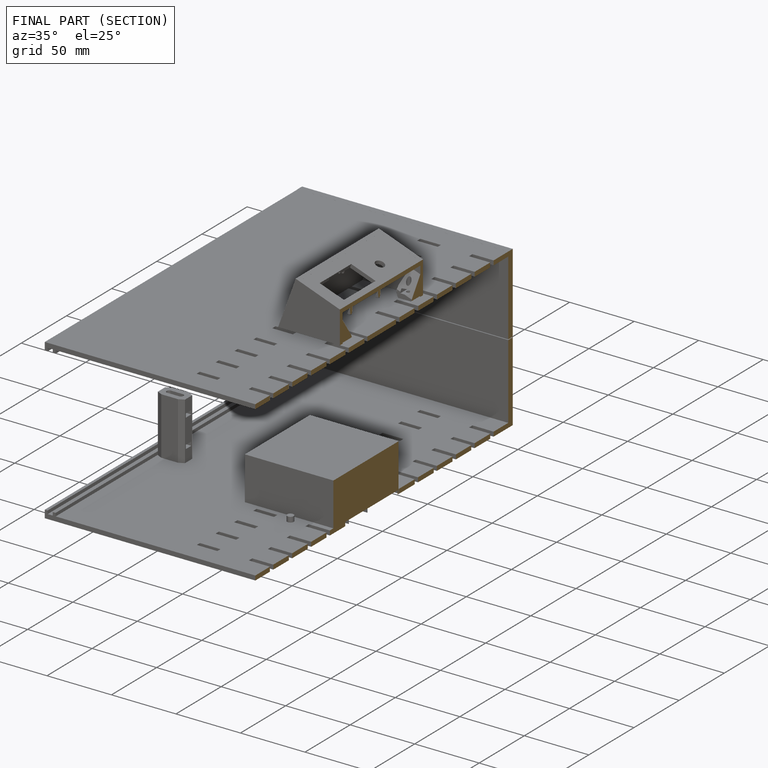
[diagram: finished part — half-section view (interior)]
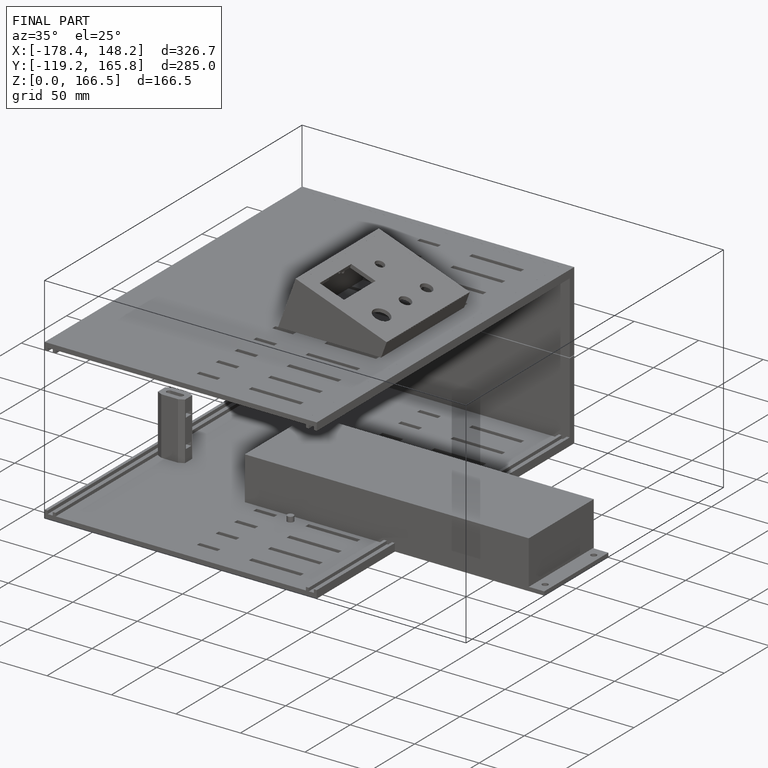
[diagram: finished part — iso view with bounding-box wireframe]
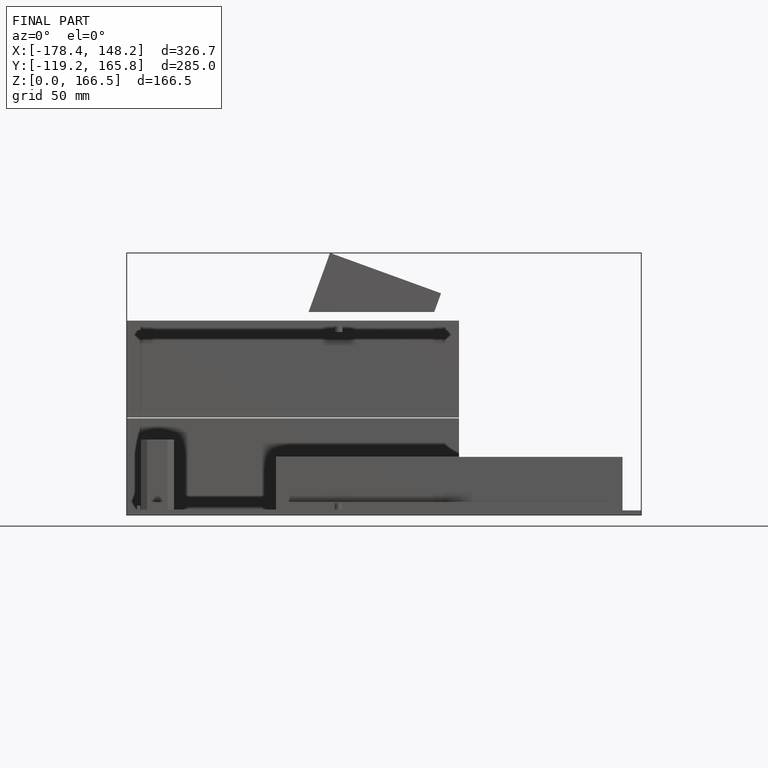
[diagram: finished part — front view with bounding-box wireframe]
